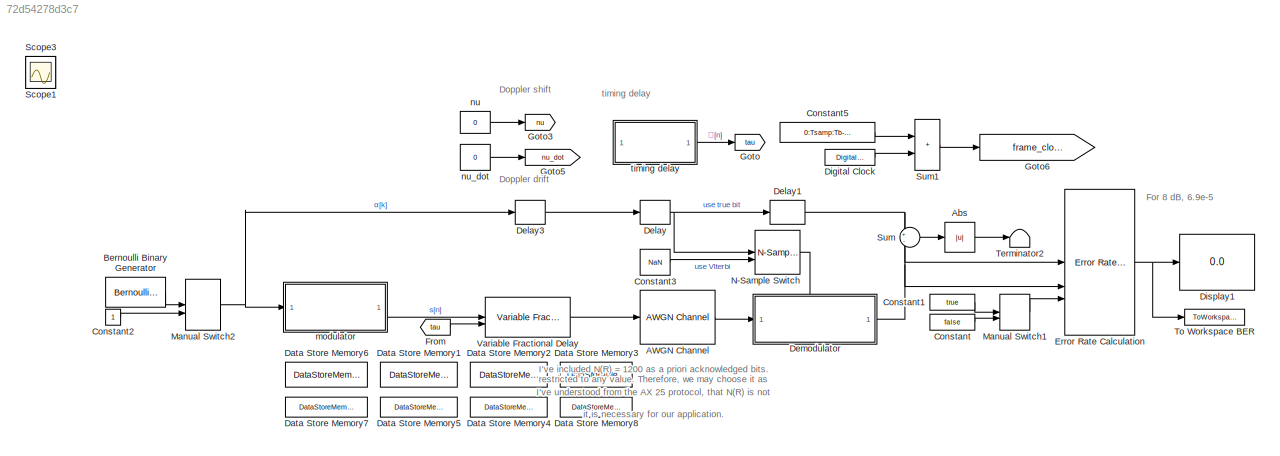
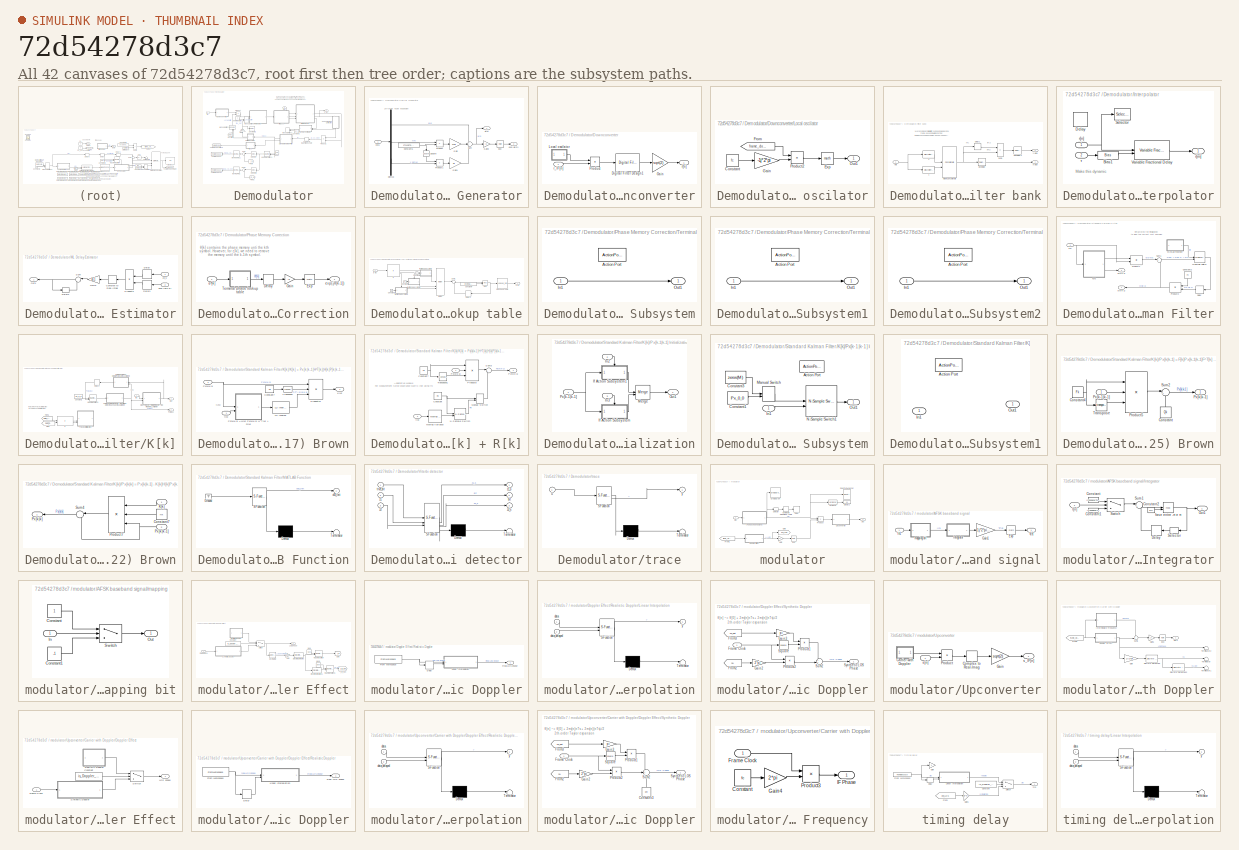
[diagram: thumbnail index - all 42 canvases of the model, root first then tree order]
MODEL slx_72d54278d3c7
KIND model
CONFIG AbsTol = auto
CONFIG EnableMultiTasking = off
CONFIG FixedStep = auto
CONFIG InitFcn = % get realistic ϕ_LOS (in rad) and tau_LOS (in sec) (both sampled in Tb)\n[phi_LOS, tau_LOS]= get_LOS_effects(f_uplink, scenario, Tb);\n% get initial estimates\ninitial_estimates = get_initial_estimates(phi_LOS.Data, Tb);\n% tau in number of symbols (unitless, sampled  in Tb)\ntau_LOS_symbols = tau_LOS/Tb;\n% 𝜏 LOS in in number of samples (unitless, sampled in Tb)\ntau_LOS_samples = tau_LOS_symbols*Ns;\n\n...<+1507ch>
CONFIG MaxStep = auto
CONFIG MinStep = auto
CONFIG PreLoadFcn = addpath('./inputs')\n\nfc = 120e3;\ndelta_f = 1000; % Hz\nf0 = fc-(delta_f/2);\nf1 = fc+(delta_f/2);\n\nRb = 1200; % bit rate = 1,2 kbps\nTb = 1/Rb; % Bit period = Frame period\nNc = 4; % the number of samples between 0 and 2π of the carrier. There are 100 periods in each Ns samples.\nNs = fc*Tb*Nc; % = 400 The number of samples per Tb.\nTsamp = Tb/Ns; % Sample period\nRsamp = 1/Tsamp; % sampling rate\n\nfd = d...<+843ch>
CONFIG RelTol = 1e-3
CONFIG SampleTimeConstraint = Unconstrained
CONFIG SolverName = VariableStepAuto
CONFIG StartTime = 0.0
CONFIG StopTime = inf
BLOCK [Reference] AWGN Channel  REF=commchan3/AWGN
Channel
  SourceBlock = commchan3/AWGN\nChannel
  SourceType = AWGN Channel
  UserDataPersistent = on
BLOCK [Abs] Abs
  SaturateOnIntegerOverflow = off
BLOCK [Reference] Bernoulli Binary Generator  REF=commrandsrc3/Bernoulli Binary
Generator
  SourceBlock = commrandsrc3/Bernoulli Binary\nGenerator
  SourceType = Bernoulli Binary Generator
BLOCK [Constant] Constant
  Value = false
BLOCK [Constant] Constant1
  Value = true
BLOCK [Constant] Constant2
  SampleTime = Tb
BLOCK [Constant] Constant3
  Value = NaN
BLOCK [Constant] Constant5
  Value = 0:Tsamp:Tb-Tsamp
BLOCK [DataStoreMemory] Data Store Memory1
  DataStoreName = z2_window
  Dimensions = [N_terminal_phases/2 K]
  InitialValue = NaN(N_terminal_phases/2, K)
  OutDataTypeStr = double
  ReadBeforeWriteMsg = warning
  ShowAdditionalParam = off
  SignalType = complex
  WriteAfterReadMsg = warning
  WriteAfterWriteMsg = warning
BLOCK [DataStoreMemory] Data Store Memory2
  DataStoreName = is_full_window
  Dimensions = 1
  InitialValue = logical(0)
  OutDataTypeStr = boolean
  ReadBeforeWriteMsg = warning
  ShowAdditionalParam = off
  SignalType = real
  WriteAfterReadMsg = warning
  WriteAfterWriteMsg = warning
BLOCK [DataStoreMemory] Data Store Memory3
  DataStoreName = z1_window
  Dimensions = [N_terminal_phases/2 K]
  InitialValue = NaN(N_terminal_phases/2, K)
  OutDataTypeStr = double
  ReadBeforeWriteMsg = warning
  ShowAdditionalParam = off
  SignalType = complex
  WriteAfterReadMsg = warning
  WriteAfterWriteMsg = warning
BLOCK [DataStoreMemory] Data Store Memory4
  DataStoreName = bits_window
  Dimensions = [N_terminal_phases/2 K]
  InitialValue = 5*ones(N_terminal_phases/2, K)
  OutDataTypeStr = double
  ReadBeforeWriteMsg = warning
  ShowAdditionalParam = off
  SignalType = real
  WriteAfterReadMsg = warning
  WriteAfterWriteMsg = warning
BLOCK [DataStoreMemory] Data Store Memory5
  DataStoreName = depth
  Dimensions = 1
  InitialValue = -init_LOS_delay
  OutDataTypeStr = double
  ReadBeforeWriteMsg = warning
  ShowAdditionalParam = off
  SignalType = real
  WriteAfterReadMsg = warning
  WriteAfterWriteMsg = warning
BLOCK [DataStoreMemory] Data Store Memory6
  DataStoreName = metric_survivors
  Dimensions = N_terminal_phases/2
  InitialValue = zeros(1,N_terminal_phases/2)
  OutDataTypeStr = double
  ReadBeforeWriteMsg = warning
  ShowAdditionalParam = off
  SignalType = real
  WriteAfterReadMsg = warning
  WriteAfterWriteMsg = warning
BLOCK [DataStoreMemory] Data Store Memory7
  DataStoreName = state
  Dimensions = 1
  InitialValue = false
  OutDataTypeStr = boolean
  ReadBeforeWriteMsg = warning
  ShowAdditionalParam = off
  SignalType = real
  WriteAfterReadMsg = warning
  WriteAfterWriteMsg = warning
BLOCK [DataStoreMemory] Data Store Memory8
  DataStoreName = count
  Dimensions = 1
  InitialValue = 1
  OutDataTypeStr = double
  ReadBeforeWriteMsg = warning
  ShowAdditionalParam = off
  SignalType = real
  WriteAfterReadMsg = warning
  WriteAfterWriteMsg = warning
BLOCK [Delay] Delay
  DelayLength = 1
  InitialCondition = NaN
  InputPortMap = u0
  NameLocation = top
BLOCK [Delay] Delay1
  DelayLength = K
  InitialCondition = NaN
  InputPortMap = u0
BLOCK [Delay] Delay3
  DelayLength = init_LOS_delay
  InitialCondition = NaN
  InputPortMap = u0
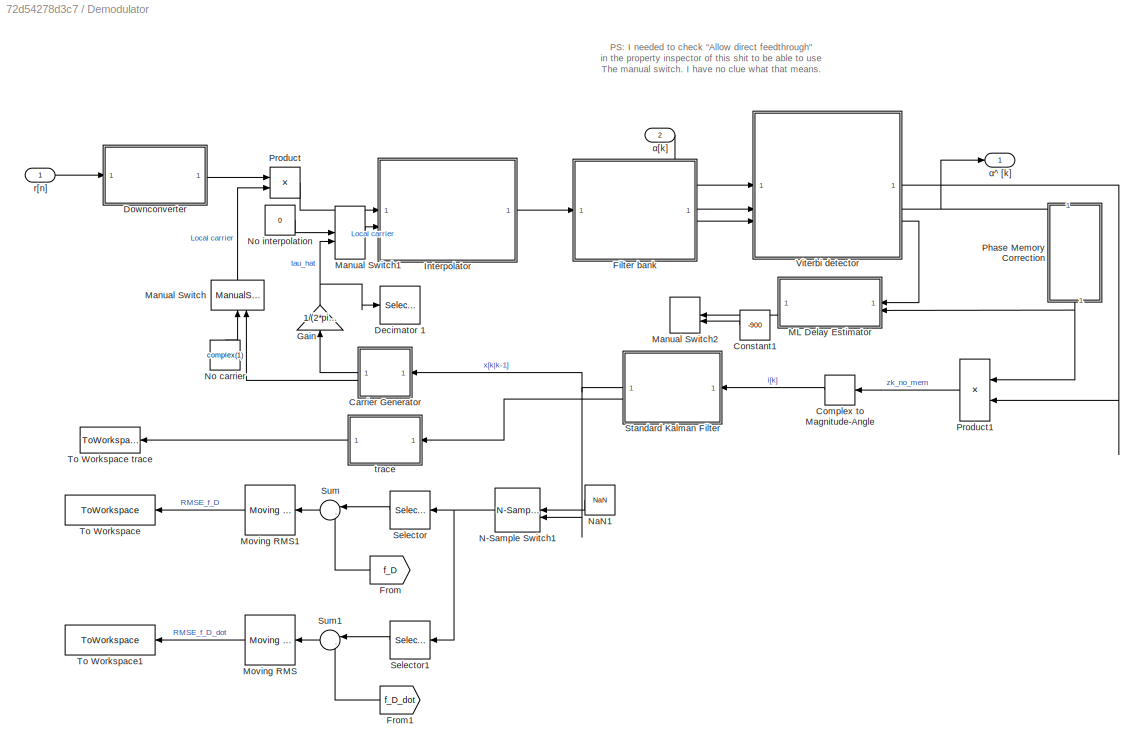
BLOCK [SubSystem] Demodulator
  PortSchema = {"entries":[{"content":{"sides":[{"content":{"connectorIds":["In1"]},"type":"ConnectorPlacement.EquallySpacedRectSide","uuid":"ecba8ed6-bc33-46f0-af25-b274c72623b2"},{"content":{"connectorIds":["Out1"],"side":"RIGHT"},"type":"ConnectorPlacement.EquallySpacedRectSide","uuid":"d7f95e6f-fba9-4d7d-8ac9-e609210cafa8"},{"content":{"connectorIds":["In2"],"side":"TOP"},"type":"ConnectorPlacement.EquallySp...<+245ch>
BLOCK [SubSystem] Demodulator/Carrier Generator
BLOCK [Constant] Demodulator/Carrier Generator/Constant5
  Value = 0:Tsamp:Tb-Tsamp
BLOCK [Demux] Demodulator/Carrier Generator/Demux
  Outputs = 3
BLOCK [Math] Demodulator/Carrier Generator/Exp
BLOCK [Gain] Demodulator/Carrier Generator/Gain
  Gain = 2*pi
BLOCK [Gain] Demodulator/Carrier Generator/Gain1
  Gain = pi
BLOCK [Gain] Demodulator/Carrier Generator/Gain2
  Gain = -1j
BLOCK [Product] Demodulator/Carrier Generator/Product
BLOCK [Product] Demodulator/Carrier Generator/Product1
BLOCK [Math] Demodulator/Carrier Generator/Square
  NameLocation = left
  Operator = square
BLOCK [Sum] Demodulator/Carrier Generator/Sum
  Inputs = +++
BLOCK [Outport] Demodulator/Carrier Generator/exp(-jθ[n])
  Port = 2
BLOCK [Inport] Demodulator/Carrier Generator/xkk1
BLOCK [Outport] Demodulator/Carrier Generator/θ[n]
BLOCK [ComplexToMagnitudeAngle] Demodulator/Complex to Magnitude-Angle
  NameLocation = top
  Output = Angle
BLOCK [Constant] Demodulator/Constant1
  Commented = on
  Value = -900
BLOCK [Selector] Demodulator/Decimator 1
  IndexOptions = Index vector (dialog),Select all
  Indices = Ns,1
  InputPortWidth = 3
  NumberOfDimensions = 2
  OutputSizes = 1,1
BLOCK [SubSystem] Demodulator/Downconverter
  Commented = through
  NameLocation = top
BLOCK [Reference] Demodulator/Downconverter/Digital Filter Design1  REF=dspfdesign/Digital
Filter Design
  SourceBlock = dspfdesign/Digital\nFilter Design
  SourceType = Digital Filter Design
  UserDataPersistent = on
BLOCK [Gain] Demodulator/Downconverter/Gain
  Gain = sqrt(2)
BLOCK [SubSystem] Demodulator/Downconverter/Local oscilator
  NameLocation = top
BLOCK [Constant] Demodulator/Downconverter/Local oscilator/Constant
  Value = fc
BLOCK [Math] Demodulator/Downconverter/Local oscilator/Exp
BLOCK [From] Demodulator/Downconverter/Local oscilator/From
  GotoTag = frame_clock
  TagVisibility = global
BLOCK [Gain] Demodulator/Downconverter/Local oscilator/Gain
  Gain = -1j*2*pi
BLOCK [Outport] Demodulator/Downconverter/Local oscilator/Out1
BLOCK [Product] Demodulator/Downconverter/Local oscilator/Product2
BLOCK [Product] Demodulator/Downconverter/Product
BLOCK [Inport] Demodulator/Downconverter/r_IF[n]
BLOCK [Outport] Demodulator/Downconverter/r̃[n]
  NameLocation = top
BLOCK [SubSystem] Demodulator/Filter bank
BLOCK [DiscreteFir] Demodulator/Filter bank/0
  CloseFcn = dspblkCoreblockFVToolHelper(gcbh,'close');
  Coefficients = flip(impulse_response(:,1)')
  CopyFcn = dspblkCoreblockFVToolHelper(gcbh,'copy');
  DeleteFcn = dspblkCoreblockFVToolHelper(gcbh,'close');
  InputPortMap = u0
  InputProcessing = Columns as channels (frame based)
  LoadFcn = dspblkCoreblockFVToolHelper(gcbh,'load');
  ModelCloseFcn = dspblkCoreblockFVToolHelper(gcbh,'close');
  OutputPortMap = o0
  PostSaveFcn = dspblkCoreblockFVToolHelper(gcbh,'postsave');
  PreSaveFcn = dspblkCoreblockFVToolHelper(gcbh,'presave');
BLOCK [DiscreteFir] Demodulator/Filter bank/1
  CloseFcn = dspblkCoreblockFVToolHelper(gcbh,'close');
  Coefficients = flip(impulse_response(:,2)')
  CopyFcn = dspblkCoreblockFVToolHelper(gcbh,'copy');
  DeleteFcn = dspblkCoreblockFVToolHelper(gcbh,'close');
  InputPortMap = u0
  InputProcessing = Columns as channels (frame based)
  LoadFcn = dspblkCoreblockFVToolHelper(gcbh,'load');
  ModelCloseFcn = dspblkCoreblockFVToolHelper(gcbh,'close');
  OutputPortMap = o0
  PostSaveFcn = dspblkCoreblockFVToolHelper(gcbh,'postsave');
  PreSaveFcn = dspblkCoreblockFVToolHelper(gcbh,'presave');
BLOCK [Selector] Demodulator/Filter bank/Decimator
  IndexOptions = Index vector (dialog),Select all
  Indices = Ns,Ns
  InputPortWidth = 3
  NumberOfDimensions = 2
  OutputSizes = 1,1
BLOCK [Selector] Demodulator/Filter bank/Decimator 2
  IndexOptions = Index vector (dialog),Select all
  Indices = Ns,1
  InputPortWidth = 3
  NumberOfDimensions = 2
  OutputSizes = 1,1
BLOCK [Delay] Demodulator/Filter bank/Delay1
  InputPortMap = u0
  InputProcessing = Columns as channels (frame based)
BLOCK [Concatenate] Demodulator/Filter bank/Matrix Concatenate
  ConcatenateDimension = 2
  Mode = Multidimensional array
BLOCK [Sum] Demodulator/Filter bank/Sum1
  IconShape = rectangular
  Inputs = -+
BLOCK [Inport] Demodulator/Filter bank/r[m]
BLOCK [Outport] Demodulator/Filter bank/x(α[k])
BLOCK [Outport] Demodulator/Filter bank/y(α[k])
  Port = 2
BLOCK [From] Demodulator/From
  GotoTag = f_D
  NameLocation = top
  TagVisibility = global
BLOCK [From] Demodulator/From1
  GotoTag = f_D_dot
  NameLocation = top
  TagVisibility = global
BLOCK [Gain] Demodulator/Gain
  Gain = 1/(2*pi*f_uplink*Tsamp)
  NameLocation = left
BLOCK [SubSystem] Demodulator/Interpolator
BLOCK [Bias] Demodulator/Interpolator/Bias1
  Bias = (init_LOS_delay+1)*Ns
  SaturateOnIntegerOverflow = off
BLOCK [Delay] Demodulator/Interpolator/Delay
  Commented = on
  DelayLength = Ns-9
  DelayLengthSource = Input port
  DelayLengthUpperLimit = Ns-9
  InputPortMap = u0,p1
  InputProcessing = Columns as channels (frame based)
BLOCK [Selector] Demodulator/Interpolator/Selector
  Commented = on
  IndexOptions = Select all,Index vector (dialog)
  Indices = [1 3],1
  InputPortWidth = 3
  NumberOfDimensions = 2
  OutputSizes = 1,1
BLOCK [Reference] Demodulator/Interpolator/Variable Fractional Delay  REF=dspsigops/Variable
Fractional Delay
  SourceBlock = dspsigops/Variable\nFractional Delay
  SourceType = Variable Fractional Delay
  UserDataPersistent = on
BLOCK [Outport] Demodulator/Interpolator/r[m]
BLOCK [Inport] Demodulator/Interpolator/r[n]
  NameLocation = top
BLOCK [Inport] Demodulator/Interpolator/τ
  Port = 2
BLOCK [SubSystem] Demodulator/ML Delay Estimator
  Commented = on
BLOCK [ComplexToRealImag] Demodulator/ML Delay Estimator/Complex to Real-Imag
  Output = Real
BLOCK [Delay] Demodulator/ML Delay Estimator/Delay
  DelayLength = 1
  InputPortMap = u0
  NameLocation = top
BLOCK [Delay] Demodulator/ML Delay Estimator/Delay1
  DelayLength = 1
  InputPortMap = u0
  NameLocation = top
BLOCK [Delay] Demodulator/ML Delay Estimator/Delay2
  DelayLength = 1
  InitialCondition = -real_tau_LOS.Data(1)
  InputPortMap = u0
BLOCK [Gain] Demodulator/ML Delay Estimator/Gain1
  Gain = 1e-1
BLOCK [Outport] Demodulator/ML Delay Estimator/Out1
BLOCK [Product] Demodulator/ML Delay Estimator/Product2
  NameLocation = top
BLOCK [Sum] Demodulator/ML Delay Estimator/Sum
  Inputs = |-+
BLOCK [Inport] Demodulator/ML Delay Estimator/exp(-jθ[k-1])
  NameLocation = top
  Port = 2
BLOCK [Inport] Demodulator/ML Delay Estimator/z2_s
  NameLocation = top
BLOCK [ManualSwitch] Demodulator/Manual Switch
  CurrentSetting = 0
  NameLocation = right
BLOCK [ManualSwitch] Demodulator/Manual Switch1
  CurrentSetting = 0
BLOCK [ManualSwitch] Demodulator/Manual Switch2
  Commented = on
BLOCK [Reference] Demodulator/Moving RMS  REF=dspstat3/Moving
RMS
  NameLocation = top
  SourceBlock = dspstat3/Moving\nRMS
  SourceType = dsp.simulink.MovingRMS
BLOCK [Reference] Demodulator/Moving RMS1  REF=dspstat3/Moving
RMS
  NameLocation = top
  SourceBlock = dspstat3/Moving\nRMS
  SourceType = dsp.simulink.MovingRMS
BLOCK [Reference] Demodulator/N-Sample Switch1  REF=dspswit3/N-Sample
Switch
  NameLocation = top
  SourceBlock = dspswit3/N-Sample\nSwitch
  SourceType = N-Sample Switch
BLOCK [Constant] Demodulator/NaN1
  NameLocation = top
  OutDataTypeStr = Inherit: Inherit via back propagation
  Value = NaN
BLOCK [Constant] Demodulator/No carrier
  Value = complex(1)
BLOCK [Constant] Demodulator/No interpolation
  Value = 0
BLOCK [SubSystem] Demodulator/Phase Memory Correction
  NameLocation = left
BLOCK [Delay] Demodulator/Phase Memory Correction/Delay
  DelayLength = 1
  InputPortMap = u0
BLOCK [Math] Demodulator/Phase Memory Correction/Exp
  NameLocation = top
BLOCK [Gain] Demodulator/Phase Memory Correction/Gain
  Gain = -1j
  NameLocation = top
BLOCK [SubSystem] Demodulator/Phase Memory Correction/Terminal phase lookup table
BLOCK [Constant] Demodulator/Phase Memory Correction/Terminal phase lookup table/Constant1
  Value = 0
BLOCK [Constant] Demodulator/Phase Memory Correction/Terminal phase lookup table/Constant7
  Value = length(all_phases)
BLOCK [Constant] Demodulator/Phase Memory Correction/Terminal phase lookup table/Constant8
BLOCK [Constant] Demodulator/Phase Memory Correction/Terminal phase lookup table/Constant9
  Value = -1
BLOCK [Delay] Demodulator/Phase Memory Correction/Terminal phase lookup table/Delay3
  DelayLength = 1
  InputPortMap = u0
BLOCK [If] Demodulator/Phase Memory Correction/Terminal phase lookup table/If
  ElseIfExpressions = u1 == 0
  IfExpression = u1 == 1
BLOCK [SubSystem] Demodulator/Phase Memory Correction/Terminal phase lookup table/If Action Subsystem
  TreatAsAtomicUnit = on
BLOCK [ActionPort] Demodulator/Phase Memory Correction/Terminal phase lookup table/If Action Subsystem/Action Port
  ActionPortLabel = if(u1 == 1)
BLOCK [Inport] Demodulator/Phase Memory Correction/Terminal phase lookup table/If Action Subsystem/In1
BLOCK [Outport] Demodulator/Phase Memory Correction/Terminal phase lookup table/If Action Subsystem/Out1
BLOCK [SubSystem] Demodulator/Phase Memory Correction/Terminal phase lookup table/If Action Subsystem1
  TreatAsAtomicUnit = on
BLOCK [ActionPort] Demodulator/Phase Memory Correction/Terminal phase lookup table/If Action Subsystem1/Action Port
  ActionPortLabel = elseif(u1 == 0)
BLOCK [Inport] Demodulator/Phase Memory Correction/Terminal phase lookup table/If Action Subsystem1/In1
BLOCK [Outport] Demodulator/Phase Memory Correction/Terminal phase lookup table/If Action Subsystem1/Out1
BLOCK [SubSystem] Demodulator/Phase Memory Correction/Terminal phase lookup table/If Action Subsystem2
  TreatAsAtomicUnit = on
BLOCK [ActionPort] Demodulator/Phase Memory Correction/Terminal phase lookup table/If Action Subsystem2/Action Port
  ActionPortLabel = else
BLOCK [Inport] Demodulator/Phase Memory Correction/Terminal phase lookup table/If Action Subsystem2/In1
BLOCK [Outport] Demodulator/Phase Memory Correction/Terminal phase lookup table/If Action Subsystem2/Out1
BLOCK [Merge] Demodulator/Phase Memory Correction/Terminal phase lookup table/Merge
  Inputs = 3
BLOCK [Math] Demodulator/Phase Memory Correction/Terminal phase lookup table/Mod
  Operator = mod
BLOCK [Sum] Demodulator/Phase Memory Correction/Terminal phase lookup table/Sum1
  Inputs = |++
BLOCK [Lookup_n-D] Demodulator/Phase Memory Correction/Terminal phase lookup table/n-D Lookup Table
  BreakpointsForDimension1 = 0:length(all_phases)-1
  BreakpointsForDimension1FirstPoint = 10
  BreakpointsForDimension1Spacing = 12
  BreakpointsForDimension2 = [1:2]
  BreakpointsForDimension2FirstPoint = 10
  BreakpointsForDimension2Spacing = 12
  BreakpointsForDimension3 = [5, 7]
  DiagnosticForOutOfRangeInput = Error
  IndexSearchMethod = Evenly spaced points
  InputPortMap = u0
  InternalRulePriority = Speed
  InterpMethod = Flat
  LookupTableObject = ''
  NumberOfTableDimensions = 1
  RndMeth = Simplest
  Table = all_phases
BLOCK [Inport] Demodulator/Phase Memory Correction/Terminal phase lookup table/α^ [k]
BLOCK [Outport] Demodulator/Phase Memory Correction/Terminal phase lookup table/θ^[k]
BLOCK [Outport] Demodulator/Phase Memory Correction/exp(-jθ[k-1])
  NameLocation = top
BLOCK [Inport] Demodulator/Phase Memory Correction/α^[k]
BLOCK [Product] Demodulator/Product
BLOCK [Product] Demodulator/Product1
  NameLocation = top
BLOCK [Selector] Demodulator/Selector
  IndexOptions = Index vector (dialog)
  Indices = 2
  InputPortWidth = 3
  NameLocation = top
  OutputSizes = 1
BLOCK [Selector] Demodulator/Selector1
  IndexOptions = Index vector (dialog)
  Indices = 3
  InputPortWidth = 3
  NameLocation = top
  OutputSizes = 1
BLOCK [SubSystem] Demodulator/Standard Kalman Filter
BLOCK [Constant] Demodulator/Standard Kalman Filter/Constant2
  NameLocation = left
  SampleTime = Tb
  Value = Fk
  VectorParams1D = off
BLOCK [Delay] Demodulator/Standard Kalman Filter/Delay
  DelayLength = 1
  InitialCondition = 0
  InputPortMap = u0
  NameLocation = top
BLOCK [SubSystem] Demodulator/Standard Kalman Filter/K[k]
BLOCK [Constant] Demodulator/Standard Kalman Filter/K[k]/Constant1
  SampleTime = Tb
  Value = Px_0_0
  VectorParams1D = off
BLOCK [Delay] Demodulator/Standard Kalman Filter/K[k]/Delay1
  DelayLength = 1
  InitialCondition = 0
  InputPortMap = u0
BLOCK [From] Demodulator/Standard Kalman Filter/K[k]/From
  Commented = on
  GotoTag = Reinit_time
  TagVisibility = global
BLOCK [From] Demodulator/Standard Kalman Filter/K[k]/From1
  Commented = on
  GotoTag = digital_clock
  TagVisibility = global
BLOCK [If] Demodulator/Standard Kalman Filter/K[k]/If
  Commented = on
  IfExpression = u1 > u2
  NumInputs = 2
BLOCK [Outport] Demodulator/Standard Kalman Filter/K[k]/K[k]
  VectorParamsAs1DForOutWhenUnconnected = off
BLOCK [SubSystem] Demodulator/Standard Kalman Filter/K[k]/K[k] = Px[k|k-1]H^T[k](H[k]P[k|k-1]H^T[k] + R[k])⁻¹ cf. (4.2.17) Brown
BLOCK [Reference] Demodulator/Standard Kalman Filter/K[k]/K[k] = Px[k|k-1]H^T[k](H[k]P[k|k-1]H^T[k] + R[k])⁻¹ cf. (4.2.17) Brown/ LU Inverse  REF=dspinverses/ LU Inverse
  SourceBlock = dspinverses/ LU Inverse
  SourceType = LU Inverse
BLOCK [SubSystem] Demodulator/Standard Kalman Filter/K[k]/K[k] = Px[k|k-1]H^T[k](H[k]P[k|k-1]H^T[k] + R[k])⁻¹ cf. (4.2.17) Brown/ Pz[k|k-1] = H[k] Px[k|k-1] H^T[k] + R[k]
BLOCK [Constant] Demodulator/Standard Kalman Filter/K[k]/K[k] = Px[k|k-1]H^T[k](H[k]P[k|k-1]H^T[k] + R[k])⁻¹ cf. (4.2.17) Brown/ Pz[k|k-1] = H[k] Px[k|k-1] H^T[k] + R[k]/Constant
  Value = Rk
BLOCK [Constant] Demodulator/Standard Kalman Filter/K[k]/K[k] = Px[k|k-1]H^T[k](H[k]P[k|k-1]H^T[k] + R[k])⁻¹ cf. (4.2.17) Brown/ Pz[k|k-1] = H[k] Px[k|k-1] H^T[k] + R[k]/Constant7
  SampleTime = Tb
  Value = Hk
  VectorParams1D = off
BLOCK [ManualSwitch] Demodulator/Standard Kalman Filter/K[k]/K[k] = Px[k|k-1]H^T[k](H[k]P[k|k-1]H^T[k] + R[k])⁻¹ cf. (4.2.17) Brown/ Pz[k|k-1] = H[k] Px[k|k-1] H^T[k] + R[k]/Manual Switch
BLOCK [Reference] Demodulator/Standard Kalman Filter/K[k]/K[k] = Px[k|k-1]H^T[k](H[k]P[k|k-1]H^T[k] + R[k])⁻¹ cf. (4.2.17) Brown/ Pz[k|k-1] = H[k] Px[k|k-1] H^T[k] + R[k]/Moving Variance  REF=dspstat3/Moving
Variance
  SourceBlock = dspstat3/Moving\nVariance
  SourceType = dsp.simulink.MovingVariance
BLOCK [Reference] Demodulator/Standard Kalman Filter/K[k]/K[k] = Px[k|k-1]H^T[k](H[k]P[k|k-1]H^T[k] + R[k])⁻¹ cf. (4.2.17) Brown/ Pz[k|k-1] = H[k] Px[k|k-1] H^T[k] + R[k]/N-Sample Switch  REF=dspswit3/N-Sample
Switch
  SourceBlock = dspswit3/N-Sample\nSwitch
  SourceType = N-Sample Switch
BLOCK [Product] Demodulator/Standard Kalman Filter/K[k]/K[k] = Px[k|k-1]H^T[k](H[k]P[k|k-1]H^T[k] + R[k])⁻¹ cf. (4.2.17) Brown/ Pz[k|k-1] = H[k] Px[k|k-1] H^T[k] + R[k]/Product8
  Inputs = 3
  Multiplication = Matrix(*)
BLOCK [Inport] Demodulator/Standard Kalman Filter/K[k]/K[k] = Px[k|k-1]H^T[k](H[k]P[k|k-1]H^T[k] + R[k])⁻¹ cf. (4.2.17) Brown/ Pz[k|k-1] = H[k] Px[k|k-1] H^T[k] + R[k]/Px[k|k-1]
BLOCK [Outport] Demodulator/Standard Kalman Filter/K[k]/K[k] = Px[k|k-1]H^T[k](H[k]P[k|k-1]H^T[k] + R[k])⁻¹ cf. (4.2.17) Brown/ Pz[k|k-1] = H[k] Px[k|k-1] H^T[k] + R[k]/Pz[k|k-1]
  VectorParamsAs1DForOutWhenUnconnected = off
BLOCK [Sum] Demodulator/Standard Kalman Filter/K[k]/K[k] = Px[k|k-1]H^T[k](H[k]P[k|k-1]H^T[k] + R[k])⁻¹ cf. (4.2.17) Brown/ Pz[k|k-1] = H[k] Px[k|k-1] H^T[k] + R[k]/Sum3
  Inputs = |++
BLOCK [Math] Demodulator/Standard Kalman Filter/K[k]/K[k] = Px[k|k-1]H^T[k](H[k]P[k|k-1]H^T[k] + R[k])⁻¹ cf. (4.2.17) Brown/ Pz[k|k-1] = H[k] Px[k|k-1] H^T[k] + R[k]/Transpose1
  Operator = transpose
  SignedPower = on
BLOCK [Inport] Demodulator/Standard Kalman Filter/K[k]/K[k] = Px[k|k-1]H^T[k](H[k]P[k|k-1]H^T[k] + R[k])⁻¹ cf. (4.2.17) Brown/ Pz[k|k-1] = H[k] Px[k|k-1] H^T[k] + R[k]/i[k]
  Port = 2
BLOCK [Constant] Demodulator/Standard Kalman Filter/K[k]/K[k] = Px[k|k-1]H^T[k](H[k]P[k|k-1]H^T[k] + R[k])⁻¹ cf. (4.2.17) Brown/Constant7
  NameLocation = top
  SampleTime = Tb
  Value = Hk
  VectorParams1D = off
BLOCK [Outport] Demodulator/Standard Kalman Filter/K[k]/K[k] = Px[k|k-1]H^T[k](H[k]P[k|k-1]H^T[k] + R[k])⁻¹ cf. (4.2.17) Brown/K[k]
  VectorParamsAs1DForOutWhenUnconnected = off
BLOCK [Product] Demodulator/Standard Kalman Filter/K[k]/K[k] = Px[k|k-1]H^T[k](H[k]P[k|k-1]H^T[k] + R[k])⁻¹ cf. (4.2.17) Brown/Product11
  Inputs = 3
  Multiplication = Matrix(*)
BLOCK [Inport] Demodulator/Standard Kalman Filter/K[k]/K[k] = Px[k|k-1]H^T[k](H[k]P[k|k-1]H^T[k] + R[k])⁻¹ cf. (4.2.17) Brown/Px[k|k-1]
  Port = 2
BLOCK [Math] Demodulator/Standard Kalman Filter/K[k]/K[k] = Px[k|k-1]H^T[k](H[k]P[k|k-1]H^T[k] + R[k])⁻¹ cf. (4.2.17) Brown/Transpose
  Operator = transpose
BLOCK [Inport] Demodulator/Standard Kalman Filter/K[k]/K[k] = Px[k|k-1]H^T[k](H[k]P[k|k-1]H^T[k] + R[k])⁻¹ cf. (4.2.17) Brown/i[k]
BLOCK [Reference] Demodulator/Standard Kalman Filter/K[k]/N-Sample Switch1  REF=dspswit3/N-Sample
Switch
  SourceBlock = dspswit3/N-Sample\nSwitch
  SourceType = N-Sample Switch
BLOCK [SubSystem] Demodulator/Standard Kalman Filter/K[k]/Px[k-1|k-1] Initialization
  Commented = on
BLOCK [SubSystem] Demodulator/Standard Kalman Filter/K[k]/Px[k-1|k-1] Initialization/If Action Subsystem
  TreatAsAtomicUnit = on
BLOCK [ActionPort] Demodulator/Standard Kalman Filter/K[k]/Px[k-1|k-1] Initialization/If Action Subsystem/Action Port
BLOCK [Constant] Demodulator/Standard Kalman Filter/K[k]/Px[k-1|k-1] Initialization/If Action Subsystem/Constant1
  SampleTime = Tb
  Value = Px_0_0
  VectorParams1D = off
BLOCK [Constant] Demodulator/Standard Kalman Filter/K[k]/Px[k-1|k-1] Initialization/If Action Subsystem/Constant3
  SampleTime = Tb
  Value = zeros(M)
  VectorParams1D = off
BLOCK [Inport] Demodulator/Standard Kalman Filter/K[k]/Px[k-1|k-1] Initialization/If Action Subsystem/In1
BLOCK [ManualSwitch] Demodulator/Standard Kalman Filter/K[k]/Px[k-1|k-1] Initialization/If Action Subsystem/Manual Switch
  CurrentSetting = 0
BLOCK [Reference] Demodulator/Standard Kalman Filter/K[k]/Px[k-1|k-1] Initialization/If Action Subsystem/N-Sample Switch1  REF=dspswit3/N-Sample
Switch
  SourceBlock = dspswit3/N-Sample\nSwitch
  SourceType = N-Sample Switch
BLOCK [Outport] Demodulator/Standard Kalman Filter/K[k]/Px[k-1|k-1] Initialization/If Action Subsystem/Out1
BLOCK [SubSystem] Demodulator/Standard Kalman Filter/K[k]/Px[k-1|k-1] Initialization/If Action Subsystem1
  TreatAsAtomicUnit = on
BLOCK [ActionPort] Demodulator/Standard Kalman Filter/K[k]/Px[k-1|k-1] Initialization/If Action Subsystem1/Action Port
BLOCK [Inport] Demodulator/Standard Kalman Filter/K[k]/Px[k-1|k-1] Initialization/If Action Subsystem1/In1
BLOCK [Outport] Demodulator/Standard Kalman Filter/K[k]/Px[k-1|k-1] Initialization/If Action Subsystem1/Out1
BLOCK [Inport] Demodulator/Standard Kalman Filter/K[k]/Px[k-1|k-1] Initialization/In2
  Port = 2
BLOCK [Inport] Demodulator/Standard Kalman Filter/K[k]/Px[k-1|k-1] Initialization/In3
  Port = 3
BLOCK [Merge] Demodulator/Standard Kalman Filter/K[k]/Px[k-1|k-1] Initialization/Merge
BLOCK [Outport] Demodulator/Standard Kalman Filter/K[k]/Px[k-1|k-1] Initialization/Out1
BLOCK [Inport] Demodulator/Standard Kalman Filter/K[k]/Px[k-1|k-1] Initialization/Px[k-1|k-1]
  NameLocation = top
BLOCK [Outport] Demodulator/Standard Kalman Filter/K[k]/Px[k|k-1]
  Port = 2
BLOCK [SubSystem] Demodulator/Standard Kalman Filter/K[k]/Px[k|k-1] = F[k]Px[k-1|k-1]F^T[k] + Q[k] Px projected ahead cf. (4.2.25) Brown
BLOCK [Constant] Demodulator/Standard Kalman Filter/K[k]/Px[k|k-1] = F[k]Px[k-1|k-1]F^T[k] + Q[k] Px projected ahead cf. (4.2.25) Brown/Constant
  NameLocation = right
  Value = Qk
BLOCK [Constant] Demodulator/Standard Kalman Filter/K[k]/Px[k|k-1] = F[k]Px[k-1|k-1]F^T[k] + Q[k] Px projected ahead cf. (4.2.25) Brown/Constant4
  SampleTime = Tb
  Value = Fk
  VectorParams1D = off
BLOCK [Product] Demodulator/Standard Kalman Filter/K[k]/Px[k|k-1] = F[k]Px[k-1|k-1]F^T[k] + Q[k] Px projected ahead cf. (4.2.25) Brown/Product5
  Inputs = 3
  Multiplication = Matrix(*)
BLOCK [Inport] Demodulator/Standard Kalman Filter/K[k]/Px[k|k-1] = F[k]Px[k-1|k-1]F^T[k] + Q[k] Px projected ahead cf. (4.2.25) Brown/Px[k-1|k-1]
  NameLocation = top
BLOCK [Outport] Demodulator/Standard Kalman Filter/K[k]/Px[k|k-1] = F[k]Px[k-1|k-1]F^T[k] + Q[k] Px projected ahead cf. (4.2.25) Brown/Px[k|k-1]
  NameLocation = top
  VectorParamsAs1DForOutWhenUnconnected = off
BLOCK [Sum] Demodulator/Standard Kalman Filter/K[k]/Px[k|k-1] = F[k]Px[k-1|k-1]F^T[k] + Q[k] Px projected ahead cf. (4.2.25) Brown/Sum2
  Inputs = |++
BLOCK [Math] Demodulator/Standard Kalman Filter/K[k]/Px[k|k-1] = F[k]Px[k-1|k-1]F^T[k] + Q[k] Px projected ahead cf. (4.2.25) Brown/Transpose
  Operator = transpose
  SignedPower = on
BLOCK [SubSystem] Demodulator/Standard Kalman Filter/K[k]/Px[k|k] = Px[k|k-1] - K[k]H[k]Px[k|k-1] cf. (4.2.22) Brown
  NameLocation = top
BLOCK [Constant] Demodulator/Standard Kalman Filter/K[k]/Px[k|k] = Px[k|k-1] - K[k]H[k]Px[k|k-1] cf. (4.2.22) Brown/Constant7
  NameLocation = top
  SampleTime = Tb
  Value = Hk
  VectorParams1D = off
BLOCK [Inport] Demodulator/Standard Kalman Filter/K[k]/Px[k|k] = Px[k|k-1] - K[k]H[k]Px[k|k-1] cf. (4.2.22) Brown/K[k]
  NameLocation = top
BLOCK [Product] Demodulator/Standard Kalman Filter/K[k]/Px[k|k] = Px[k|k-1] - K[k]H[k]Px[k|k-1] cf. (4.2.22) Brown/Product7
  Inputs = 3
  Multiplication = Matrix(*)
  NameLocation = top
BLOCK [Inport] Demodulator/Standard Kalman Filter/K[k]/Px[k|k] = Px[k|k-1] - K[k]H[k]Px[k|k-1] cf. (4.2.22) Brown/Px[k|k-1]
  Port = 2
BLOCK [Outport] Demodulator/Standard Kalman Filter/K[k]/Px[k|k] = Px[k|k-1] - K[k]H[k]Px[k|k-1] cf. (4.2.22) Brown/Px[k|k]
  VectorParamsAs1DForOutWhenUnconnected = off
BLOCK [Sum] Demodulator/Standard Kalman Filter/K[k]/Px[k|k] = Px[k|k-1] - K[k]H[k]Px[k|k-1] cf. (4.2.22) Brown/Sum4
  Inputs = |-+
  NameLocation = top
BLOCK [Inport] Demodulator/Standard Kalman Filter/K[k]/i[k]
BLOCK [SubSystem] Demodulator/Standard Kalman Filter/MATLAB Function
  ErrorFcn = Stateflow.Translate.translate
  PermitHierarchicalResolution = ExplicitOnly
  SFBlockType = MATLAB Function
  TreatAsAtomicUnit = on
BLOCK [Demux] Demodulator/Standard Kalman Filter/MATLAB Function/ Demux 
  Outputs = 1
BLOCK [Ground] Demodulator/Standard Kalman Filter/MATLAB Function/ Ground 
BLOCK [S-Function] Demodulator/Standard Kalman Filter/MATLAB Function/ SFunction 
  EnableBusSupport = on
  FunctionName = sf_sfun
  Parameters = M,init_LOS_delay,x00_matrix
  PortCounts = [1 2]
  SFcnIsStateOwnerBlock = off
  SFunctionDeploymentMode = off
  Tag = Stateflow S-Function 5
BLOCK [Terminator] Demodulator/Standard Kalman Filter/MATLAB Function/ Terminator 
BLOCK [Outport] Demodulator/Standard Kalman Filter/MATLAB Function/x00_init
BLOCK [Reference] Demodulator/Standard Kalman Filter/N-Sample Switch  REF=dspswit3/N-Sample
Switch
  SourceBlock = dspswit3/N-Sample\nSwitch
  SourceType = N-Sample Switch
BLOCK [Outport] Demodulator/Standard Kalman Filter/P[k|k-1]
  Port = 2
BLOCK [Product] Demodulator/Standard Kalman Filter/Product1
  Multiplication = Matrix(*)
BLOCK [Product] Demodulator/Standard Kalman Filter/Product2
  Multiplication = Matrix(*)
  NameLocation = top
BLOCK [Sum] Demodulator/Standard Kalman Filter/Sum1
  Inputs = |++
BLOCK [Inport] Demodulator/Standard Kalman Filter/i[k]
BLOCK [Outport] Demodulator/Standard Kalman Filter/x[k|k-1]
  VectorParamsAs1DForOutWhenUnconnected = off
BLOCK [Sum] Demodulator/Sum
  Inputs = |-+
  NameLocation = top
BLOCK [Sum] Demodulator/Sum1
  Inputs = |-+
  NameLocation = top
BLOCK [ToWorkspace] Demodulator/To Workspace
  FixptAsFi = on
  MaxDataPoints = inf
  NameLocation = top
  SampleTime = -1
  SaveFormat = Timeseries
  VariableName = RMSE_f_D
BLOCK [ToWorkspace] Demodulator/To Workspace trace
  FixptAsFi = on
  MaxDataPoints = inf
  NameLocation = top
  SampleTime = -1
  SaveFormat = Timeseries
  VariableName = tr
BLOCK [ToWorkspace] Demodulator/To Workspace1
  FixptAsFi = on
  MaxDataPoints = inf
  NameLocation = top
  SampleTime = -1
  SaveFormat = Timeseries
  VariableName = RMSE_f_D_dot
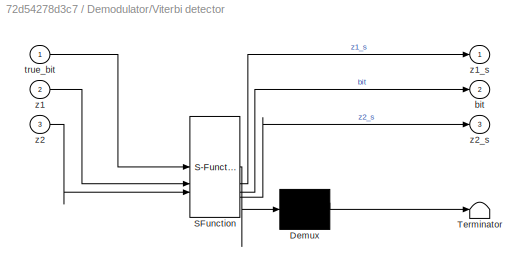
BLOCK [SubSystem] Demodulator/Viterbi detector
  ErrorFcn = Stateflow.Translate.translate
  PermitHierarchicalResolution = ExplicitOnly
  SFBlockType = MATLAB Function
  TreatAsAtomicUnit = on
BLOCK [Demux] Demodulator/Viterbi detector/ Demux 
  Outputs = 1
BLOCK [S-Function] Demodulator/Viterbi detector/ SFunction 
  EnableBusSupport = on
  FunctionName = sf_sfun
  Parameters = K,terminal_phases
  PortCounts = [3 4]
  SFcnIsStateOwnerBlock = off
  SFunctionDeploymentMode = off
  Tag = Stateflow S-Function 1
BLOCK [Terminator] Demodulator/Viterbi detector/ Terminator 
BLOCK [Outport] Demodulator/Viterbi detector/bit
  Port = 2
  VectorParamsAs1DForOutWhenUnconnected = off
BLOCK [Inport] Demodulator/Viterbi detector/true_bit
BLOCK [Inport] Demodulator/Viterbi detector/z1
  Port = 2
BLOCK [Outport] Demodulator/Viterbi detector/z1_s
BLOCK [Inport] Demodulator/Viterbi detector/z2
  Port = 3
BLOCK [Outport] Demodulator/Viterbi detector/z2_s
  Port = 3
BLOCK [Inport] Demodulator/r[n]
BLOCK [SubSystem] Demodulator/trace
  ErrorFcn = Stateflow.Translate.translate
  PermitHierarchicalResolution = ExplicitOnly
  SFBlockType = MATLAB Function
  TreatAsAtomicUnit = on
BLOCK [Demux] Demodulator/trace/ Demux 
  Outputs = 1
BLOCK [S-Function] Demodulator/trace/ SFunction 
  EnableBusSupport = on
  FunctionName = sf_sfun
  PortCounts = [1 2]
  SFcnIsStateOwnerBlock = off
  SFunctionDeploymentMode = off
  Tag = Stateflow S-Function 4
BLOCK [Terminator] Demodulator/trace/ Terminator 
BLOCK [Inport] Demodulator/trace/u
BLOCK [Outport] Demodulator/trace/y
BLOCK [Inport] Demodulator/α[k]
  Port = 2
BLOCK [Outport] Demodulator/α^ [k]
  NameLocation = top
  VectorParamsAs1DForOutWhenUnconnected = off
BLOCK [DigitalClock] Digital Clock
  SampleTime = Tb
BLOCK [Display] Display1
  Decimation = 1
  Format = short_e
BLOCK [Reference] Error Rate Calculation  REF=commsink2/Error Rate
Calculation
  SourceBlock = commsink2/Error Rate\nCalculation
  SourceType = Error Rate Calculation
BLOCK [From] From
  GotoTag = tau
  TagVisibility = global
BLOCK [Goto] Goto
  GotoTag = tau
  TagVisibility = global
BLOCK [Goto] Goto3
  GotoTag = nu
  TagVisibility = global
BLOCK [Goto] Goto5
  GotoTag = nu_dot
  TagVisibility = global
BLOCK [Goto] Goto6
  GotoTag = frame_clock
  TagVisibility = global
BLOCK [ManualSwitch] Manual Switch1
  CurrentSetting = 0
BLOCK [ManualSwitch] Manual Switch2
BLOCK [Reference] N-Sample Switch  REF=dspswit3/N-Sample
Switch
  SourceBlock = dspswit3/N-Sample\nSwitch
  SourceType = N-Sample Switch
BLOCK [Scope] Scope1
  Floating = off
  IOType = viewer
  NumInputPorts = 1
  ScopeSpecificationString = Simulink.scopes.TimeScopeBlockCfg('CurrentConfiguration', extmgr.ConfigurationSet(extmgr.Configuration('Core','General UI',true),extmgr.Configuration('Core','Source UI',true),extmgr.Configuration('Sources','WiredSimulink',true,'DataLoggingVariableName','ScopeData1'),extmgr.Configuration('Visuals','Time Domain',true,'SerializedDisplays',{struct('MinYLimReal','1.56696','MaxYLimReal','1.58221','YLabe...<+1446ch>
BLOCK [Scope] Scope3
  Floating = off
  IOType = viewer
  NumInputPorts = 1
  ScopeSpecificationString = Simulink.scopes.TimeScopeBlockCfg('CurrentConfiguration', extmgr.ConfigurationSet(extmgr.Configuration('Core','General UI',true),extmgr.Configuration('Core','Source UI',true),extmgr.Configuration('Sources','WiredSimulink',true,'DataLoggingVariableName','ScopeData2'),extmgr.Configuration('Visuals','Time Domain',true,'SerializedDisplays',{struct('MinYLimReal','-10.00000','MaxYLimReal','10.00000','YL...<+1454ch>
BLOCK [Sum] Sum
  Inputs = +-
BLOCK [Sum] Sum1
  IconShape = rectangular
BLOCK [Terminator] Terminator2
BLOCK [ToWorkspace] To Workspace BER
  FixptAsFi = on
  MaxDataPoints = 1
  SampleTime = -1
  VariableName = BER
BLOCK [Reference] Variable Fractional Delay  REF=dspsigops/Variable
Fractional Delay
  SourceBlock = dspsigops/Variable\nFractional Delay
  SourceType = Variable Fractional Delay
  UserDataPersistent = on
BLOCK [SubSystem] modulator
BLOCK [SubSystem] modulator/AFSK baseband signal
BLOCK [Math] modulator/AFSK baseband signal/Exp
BLOCK [Gain] modulator/AFSK baseband signal/Gain1
  Gain = 1j*2*pi*h
BLOCK [Inport] modulator/AFSK baseband signal/In1
BLOCK [SubSystem] modulator/AFSK baseband signal/Integrator
BLOCK [Constant] modulator/AFSK baseband signal/Integrator/Constant
  SampleTime = Tb
  Value = linspace(Tsamp / (2*Tb),0.5,Ns)
BLOCK [Constant] modulator/AFSK baseband signal/Integrator/Constant1
  SampleTime = Tb
  Value = -linspace(Tsamp / (2*Tb),0.5,Ns)
BLOCK [Constant] modulator/AFSK baseband signal/Integrator/Constant2
  SampleTime = Tb
  Value = 5/h
BLOCK [Delay] modulator/AFSK baseband signal/Integrator/Delay
  DelayLength = 1
  InputPortMap = u0
BLOCK [Inport] modulator/AFSK baseband signal/Integrator/I[n]
BLOCK [Outport] modulator/AFSK baseband signal/Integrator/Out1
  VectorParamsAs1DForOutWhenUnconnected = off
BLOCK [Selector] modulator/AFSK baseband signal/Integrator/Selector
  IndexOptions = Index vector (dialog)
  Indices = [Ns]
  InputPortWidth = Ns
  OutputSizes = 1
BLOCK [Sum] modulator/AFSK baseband signal/Integrator/Sum1
  Inputs = |++
BLOCK [Switch] modulator/AFSK baseband signal/Integrator/Switch
  Criteria = u2 > Threshold
  InputSameDT = off
  SaturateOnIntegerOverflow = off
BLOCK [Math] modulator/AFSK baseband signal/Integrator/fase entre -π e π
  Operator = mod
  SignedPower = on
BLOCK [SubSystem] modulator/AFSK baseband signal/mapping bit
BLOCK [Constant] modulator/AFSK baseband signal/mapping bit/Constant
  SampleTime = Tb
BLOCK [Constant] modulator/AFSK baseband signal/mapping bit/Constant1
  SampleTime = Tb
  Value = -1
BLOCK [Inport] modulator/AFSK baseband signal/mapping bit/In
BLOCK [Outport] modulator/AFSK baseband signal/mapping bit/Out
  VectorParamsAs1DForOutWhenUnconnected = off
BLOCK [Switch] modulator/AFSK baseband signal/mapping bit/Switch
  Criteria = u2 > Threshold
  InputSameDT = off
  SaturateOnIntegerOverflow = off
BLOCK [Outport] modulator/AFSK baseband signal/s[n]
BLOCK [ComplexToMagnitudeAngle] modulator/Complex to Magnitude-Angle
  Output = Angle
BLOCK [Delay] modulator/Delay
  DelayLength = K+1
  InitialCondition = NaN
  InputPortMap = u0
BLOCK [Display] modulator/Display2
  Commented = on
  Decimation = 1
BLOCK [SubSystem] modulator/Doppler Effect
BLOCK [Constant] modulator/Doppler Effect/Constant
  Value = is_Doppler_realistic
BLOCK [Selector] modulator/Doppler Effect/Decimator 2
  IndexOptions = Index vector (dialog),Select all
  Indices = Ns,1
  InputPortWidth = 3
  NumberOfDimensions = 2
  OutputSizes = 1,1
BLOCK [Reference] modulator/Doppler Effect/Discrete Derivative  REF=simulink/Discrete/Discrete Derivative
  SourceBlock = simulink/Discrete/Discrete Derivative
  SourceType = Discrete Derivative
BLOCK [Reference] modulator/Doppler Effect/Discrete Derivative1  REF=simulink/Discrete/Discrete Derivative
  SourceBlock = simulink/Discrete/Discrete Derivative
  SourceType = Discrete Derivative
BLOCK [Inport] modulator/Doppler Effect/Frame Clock
BLOCK [Gain] modulator/Doppler Effect/Gain
  Gain = 1/(2*pi)
BLOCK [Goto] modulator/Doppler Effect/Goto
  GotoTag = f_D
  TagVisibility = global
BLOCK [Outport] modulator/Doppler Effect/LOS phase
BLOCK [Reference] modulator/Doppler Effect/N-Sample Switch  REF=dspswit3/N-Sample
Switch
  SourceBlock = dspswit3/N-Sample\nSwitch
  SourceType = N-Sample Switch
BLOCK [Reference] modulator/Doppler Effect/N-Sample Switch1  REF=dspswit3/N-Sample
Switch
  SourceBlock = dspswit3/N-Sample\nSwitch
  SourceType = N-Sample Switch
BLOCK [Constant] modulator/Doppler Effect/NaN
  OutDataTypeStr = Inherit: Inherit via back propagation
  Value = NaN
BLOCK [Constant] modulator/Doppler Effect/NaN1
  OutDataTypeStr = Inherit: Inherit via back propagation
  Value = NaN
BLOCK [SubSystem] modulator/Doppler Effect/Realistic Doppler
BLOCK [Delay] modulator/Doppler Effect/Realistic Doppler/Delay
  DelayLength = 1
  InitialCondition = initial_estimates(1)
  InputPortMap = u0
BLOCK [FromWorkspace] modulator/Doppler Effect/Realistic Doppler/From Workspace
  SampleTime = Tb
  VariableName = phi_LOS
BLOCK [SubSystem] modulator/Doppler Effect/Realistic Doppler/Linear Interpolation
  ErrorFcn = Stateflow.Translate.translate
  NameLocation = top
  PermitHierarchicalResolution = ExplicitOnly
  SFBlockType = MATLAB Function
  TreatAsAtomicUnit = on
BLOCK [Demux] modulator/Doppler Effect/Realistic Doppler/Linear Interpolation/ Demux 
  Outputs = 1
BLOCK [S-Function] modulator/Doppler Effect/Realistic Doppler/Linear Interpolation/ SFunction 
  EnableBusSupport = on
  FunctionName = sf_sfun
  PortCounts = [2 2]
  SFcnIsStateOwnerBlock = off
  SFunctionDeploymentMode = off
  Tag = Stateflow S-Function 6
BLOCK [Terminator] modulator/Doppler Effect/Realistic Doppler/Linear Interpolation/ Terminator 
BLOCK [Inport] modulator/Doppler Effect/Realistic Doppler/Linear Interpolation/data
BLOCK [Inport] modulator/Doppler Effect/Realistic Doppler/Linear Interpolation/data_delayed
  Port = 2
BLOCK [Outport] modulator/Doppler Effect/Realistic Doppler/Linear Interpolation/y
BLOCK [Outport] modulator/Doppler Effect/Realistic Doppler/Real LOS phase
BLOCK [Switch] modulator/Doppler Effect/Switch
  Criteria = u2 ~= 0
  InputSameDT = off
  SaturateOnIntegerOverflow = off
BLOCK [SubSystem] modulator/Doppler Effect/Synthetic Doppler
BLOCK [Inport] modulator/Doppler Effect/Synthetic Doppler/Frame Clock
BLOCK [From] modulator/Doppler Effect/Synthetic Doppler/From2
  GotoTag = nu
  TagVisibility = global
BLOCK [From] modulator/Doppler Effect/Synthetic Doppler/From3
  GotoTag = nu_dot
  TagVisibility = global
BLOCK [Gain] modulator/Doppler Effect/Synthetic Doppler/Gain2
  Gain = 2*pi
BLOCK [Gain] modulator/Doppler Effect/Synthetic Doppler/Gain3
  Gain = pi
BLOCK [Product] modulator/Doppler Effect/Synthetic Doppler/Product1
BLOCK [Product] modulator/Doppler Effect/Synthetic Doppler/Product2
BLOCK [Math] modulator/Doppler Effect/Synthetic Doppler/Square
  Operator = square
BLOCK [Sum] modulator/Doppler Effect/Synthetic Doppler/Sum2
  Inputs = ++|
BLOCK [Outport] modulator/Doppler Effect/Synthetic Doppler/Synthetic LOS Phase
BLOCK [Goto] modulator/Doppler Effect/f_d_dot
  GotoTag = f_D_dot
  TagVisibility = global
BLOCK [Math] modulator/Exp
BLOCK [EyeDiagramBlock] modulator/Eye Diagram
  Commented = on
  GraphicalSettings = {"GraphicalSettings":{"Style":{"BackgroundColor":[1,1,1],"AxesColor":[1,1,1],"LabelsColor":[0.14901960784313725,0.14901960784313725,0.14901960784313725],"PreserveColors":false,"Visible":[],"LineStyle":["-"],"LineColor":[[0,0.4470588235294118,0.7411764705882353]],"LineWidth":[1.5,true],"Marker":["none"],"FontSize":"small"}}}
  OpenAtSimulationStart = off
  PlotImaginaryAxes = off
  SamplesPerSymbol = Ns
  ScopeFrameLocation = window
  SymbolsPerTrace = 5
  Title = Phase trellis
  TracesToDisplay = 100
  WasSavedAsWebScope = on
  WindowPosition = [1.000000,1.000000,1920.000000,1080.000000,]
  YLimits = [-3.93,35.34]
BLOCK [From] modulator/From1
  GotoTag = frame_clock
  TagVisibility = global
BLOCK [Gain] modulator/Gain
  Gain = 1j
BLOCK [Goto] modulator/Goto
  GotoTag = phi_LOS
  TagVisibility = global
BLOCK [Product] modulator/Product
BLOCK [Selector] modulator/Selector
  IndexOptions = Index vector (dialog)
  Indices = [Ns]
  InputPortWidth = Ns
  OutputSizes = 1
BLOCK [SpectrumAnalyzer] modulator/Spectrum Analyzer
  AllowFFTLengthLessThanSamplesPerUpdate = on
  AveragingMethod = Running
  AxesScaling = Manual
  Commented = on
  ExpandToolstrip = on
  FrequencySpan = Start and stop frequencies
  GraphicalSettings = {"GraphicalSettings":{"Style":{"BackgroundColor":[1,1,1],"AxesColor":[1,1,1],"LabelsColor":[0.14901960784313725,0.14901960784313725,0.14901960784313725],"PreserveColors":false,"Visible":[true],"LineStyle":["-"],"LineColor":[[0,0.4470588235294118,0.7411764705882353]],"LineWidth":[4],"Marker":["none"],"FontSize":"extra-large"},"Cursors":{"Enabled":false,"XLocation":[112.46826503807,3556.55882007785]...<+872ch>
  Method = Welch
  OpenAtSimulationStart = off
  PlotAsTwoSidedSpectrum = off
  SampleRate = 480000
  ScopeFrameLocation = window
  ScopeSpecificationString = spbscopes.SpectrumAnalyzerBlockCfg('CurrentConfiguration', extmgr.ConfigurationSet(extmgr.Configuration('Core','General UI',true,'FigureColor',[1 1 1]),extmgr.Configuration('Core','Source UI',true),extmgr.Configuration('Sources','WiredSimulink',true),extmgr.Configuration('Sources','SimulinkEvent',false),extmgr.Configuration('Sources','Simulink',false),extmgr.Configuration('Sources','SPTool',false)...<+4212ch>
  SpectralAverages = 100
  SpectrumType = Power density
  SpectrumUnits = dBm/Hz
  StartFrequency = 117e3
  StopFrequency = 123e3
  Title = Spectrum of digital AFSK modulator
  WasSavedAsWebScope = on
  WindowPosition = [1.000000,1.000000,1920.000000,1080.000000,]
  YLimits = [-70,22.62963183]
BLOCK [SubSystem] modulator/Upconverter
  Commented = through
BLOCK [SubSystem] modulator/Upconverter/Carrier with Doppler
BLOCK [Reference] modulator/Upconverter/Carrier with Doppler/Discrete Derivative  REF=simulink/Discrete/Discrete Derivative
  SourceBlock = simulink/Discrete/Discrete Derivative
  SourceType = Discrete Derivative
BLOCK [Reference] modulator/Upconverter/Carrier with Doppler/Discrete Derivative2  REF=simulink/Discrete/Discrete Derivative
  SourceBlock = simulink/Discrete/Discrete Derivative
  SourceType = Discrete Derivative
BLOCK [SubSystem] modulator/Upconverter/Carrier with Doppler/Doppler Effect
BLOCK [Constant] modulator/Upconverter/Carrier with Doppler/Doppler Effect/Constant
  Value = is_Doppler_realistic
BLOCK [Inport] modulator/Upconverter/Carrier with Doppler/Doppler Effect/Frame Clock
BLOCK [Outport] modulator/Upconverter/Carrier with Doppler/Doppler Effect/LOS phase
BLOCK [SubSystem] modulator/Upconverter/Carrier with Doppler/Doppler Effect/Realistic Doppler
BLOCK [Delay] modulator/Upconverter/Carrier with Doppler/Doppler Effect/Realistic Doppler/Delay
  DelayLength = 1
  InitialCondition = initial_estimates(1)
  InputPortMap = u0
BLOCK [FromWorkspace] modulator/Upconverter/Carrier with Doppler/Doppler Effect/Realistic Doppler/From Workspace
  SampleTime = Tb
  VariableName = real_LOS_phase
BLOCK [SubSystem] modulator/Upconverter/Carrier with Doppler/Doppler Effect/Realistic Doppler/Linear Interpolation
  ErrorFcn = Stateflow.Translate.translate
  NameLocation = top
  PermitHierarchicalResolution = ExplicitOnly
  SFBlockType = MATLAB Function
  TreatAsAtomicUnit = on
BLOCK [Demux] modulator/Upconverter/Carrier with Doppler/Doppler Effect/Realistic Doppler/Linear Interpolation/ Demux 
  Outputs = 1
BLOCK [S-Function] modulator/Upconverter/Carrier with Doppler/Doppler Effect/Realistic Doppler/Linear Interpolation/ SFunction 
  EnableBusSupport = on
  FunctionName = sf_sfun
  PortCounts = [2 2]
  SFcnIsStateOwnerBlock = off
  SFunctionDeploymentMode = off
  Tag = Stateflow S-Function 2
BLOCK [Terminator] modulator/Upconverter/Carrier with Doppler/Doppler Effect/Realistic Doppler/Linear Interpolation/ Terminator 
BLOCK [Inport] modulator/Upconverter/Carrier with Doppler/Doppler Effect/Realistic Doppler/Linear Interpolation/data
BLOCK [Inport] modulator/Upconverter/Carrier with Doppler/Doppler Effect/Realistic Doppler/Linear Interpolation/data_delayed
  Port = 2
BLOCK [Outport] modulator/Upconverter/Carrier with Doppler/Doppler Effect/Realistic Doppler/Linear Interpolation/y
BLOCK [Outport] modulator/Upconverter/Carrier with Doppler/Doppler Effect/Realistic Doppler/Real LOS phase
BLOCK [Switch] modulator/Upconverter/Carrier with Doppler/Doppler Effect/Switch
  Criteria = u2 ~= 0
  InputSameDT = off
  SaturateOnIntegerOverflow = off
BLOCK [SubSystem] modulator/Upconverter/Carrier with Doppler/Doppler Effect/Synthetic Doppler
BLOCK [Constant] modulator/Upconverter/Carrier with Doppler/Doppler Effect/Synthetic Doppler/Constant3
  NameLocation = right
  Value = phi
BLOCK [Inport] modulator/Upconverter/Carrier with Doppler/Doppler Effect/Synthetic Doppler/Frame Clock
BLOCK [From] modulator/Upconverter/Carrier with Doppler/Doppler Effect/Synthetic Doppler/From2
  GotoTag = nu
  TagVisibility = global
BLOCK [From] modulator/Upconverter/Carrier with Doppler/Doppler Effect/Synthetic Doppler/From3
  GotoTag = nu_dot
  TagVisibility = global
BLOCK [Gain] modulator/Upconverter/Carrier with Doppler/Doppler Effect/Synthetic Doppler/Gain2
  Gain = 2*pi
BLOCK [Gain] modulator/Upconverter/Carrier with Doppler/Doppler Effect/Synthetic Doppler/Gain3
  Gain = pi
BLOCK [Product] modulator/Upconverter/Carrier with Doppler/Doppler Effect/Synthetic Doppler/Product1
BLOCK [Product] modulator/Upconverter/Carrier with Doppler/Doppler Effect/Synthetic Doppler/Product2
BLOCK [Math] modulator/Upconverter/Carrier with Doppler/Doppler Effect/Synthetic Doppler/Square
  Operator = square
BLOCK [Sum] modulator/Upconverter/Carrier with Doppler/Doppler Effect/Synthetic Doppler/Sum2
  Inputs = +++
BLOCK [Outport] modulator/Upconverter/Carrier with Doppler/Doppler Effect/Synthetic Doppler/Synthetic LOS Phase
BLOCK [Math] modulator/Upconverter/Carrier with Doppler/Exp
BLOCK [From] modulator/Upconverter/Carrier with Doppler/From1
  GotoTag = frame_clock
  TagVisibility = global
BLOCK [Gain] modulator/Upconverter/Carrier with Doppler/Gain
  Gain = 1/(2*pi)
BLOCK [Gain] modulator/Upconverter/Carrier with Doppler/Gain1
  Gain = 1j
BLOCK [SubSystem] modulator/Upconverter/Carrier with Doppler/Intermediate Frequency
BLOCK [Constant] modulator/Upconverter/Carrier with Doppler/Intermediate Frequency/Constant
  Value = fc
BLOCK [Inport] modulator/Upconverter/Carrier with Doppler/Intermediate Frequency/Frame Clock
BLOCK [Gain] modulator/Upconverter/Carrier with Doppler/Intermediate Frequency/Gain4
  Gain = 2*pi
BLOCK [Outport] modulator/Upconverter/Carrier with Doppler/Intermediate Frequency/IF Phase
BLOCK [Product] modulator/Upconverter/Carrier with Doppler/Intermediate Frequency/Product3
BLOCK [Outport] modulator/Upconverter/Carrier with Doppler/Out1
BLOCK [Sum] modulator/Upconverter/Carrier with Doppler/Sum1
  Inputs = ++|
BLOCK [Terminator] modulator/Upconverter/Carrier with Doppler/Terminator
BLOCK [Terminator] modulator/Upconverter/Carrier with Doppler/Terminator1
BLOCK [Terminator] modulator/Upconverter/Carrier with Doppler/Terminator2
BLOCK [ComplexToRealImag] modulator/Upconverter/Complex to Real-Imag
  Output = Real
BLOCK [Gain] modulator/Upconverter/Gain
  Gain = sqrt(2)
BLOCK [Product] modulator/Upconverter/Product
BLOCK [Inport] modulator/Upconverter/s[n]
BLOCK [Outport] modulator/Upconverter/s_IF[n]
  VectorParamsAs1DForOutWhenUnconnected = off
BLOCK [Reference] modulator/Variance  REF=dspstat3/Variance
  Commented = on
  SourceBlock = dspstat3/Variance
  SourceType = Variance
  UserDataPersistent = on
BLOCK [Outport] modulator/s[n]
  VectorParamsAs1DForOutWhenUnconnected = off
BLOCK [Inport] modulator/α[k]
BLOCK [Constant] nu
  NameLocation = top
  Value = 0
BLOCK [Constant] nu_dot
  Value = 0
BLOCK [SubSystem] timing delay
BLOCK [Constant] timing delay/Constant
  Value = is_Doppler_realistic
BLOCK [Delay] timing delay/Delay
  DelayLength = 1
  InitialCondition = tau_LOS_symbols.Data(1)
  InputPortMap = u0
BLOCK [From] timing delay/From
  GotoTag = phi_LOS
  TagVisibility = global
BLOCK [FromWorkspace] timing delay/From Workspace
  OutputAfterFinalValue = Holding final value
  SampleTime = -1
  VariableName = tau_LOS_samples
BLOCK [Gain] timing delay/Gain
  Gain = -1
BLOCK [Gain] timing delay/Gain1
  Gain = 1/(2*pi*f_uplink*Tsamp)
  NameLocation = top
BLOCK [SubSystem] timing delay/Linear Interpolation
  ErrorFcn = Stateflow.Translate.translate
  PermitHierarchicalResolution = ExplicitOnly
  SFBlockType = MATLAB Function
  TreatAsAtomicUnit = on
BLOCK [Demux] timing delay/Linear Interpolation/ Demux 
  Outputs = 1
BLOCK [S-Function] timing delay/Linear Interpolation/ SFunction 
  EnableBusSupport = on
  FunctionName = sf_sfun
  PortCounts = [2 2]
  SFcnIsStateOwnerBlock = off
  SFunctionDeploymentMode = off
  Tag = Stateflow S-Function 3
BLOCK [Terminator] timing delay/Linear Interpolation/ Terminator 
BLOCK [Inport] timing delay/Linear Interpolation/data
BLOCK [Inport] timing delay/Linear Interpolation/data_delayed
  Port = 2
BLOCK [Outport] timing delay/Linear Interpolation/y
BLOCK [Switch] timing delay/Switch
  Criteria = u2 ~= 0
  InputSameDT = off
  SaturateOnIntegerOverflow = off
BLOCK [Outport] timing delay/𝜏[n]
ANNOTATION (root): Doppler drift
ANNOTATION (root): Doppler shift
ANNOTATION (root): For 8 dB, 6.9e-5
ANNOTATION (root): I've included N(R) = 1200 as a priori acknowledged bits. I've understood from the AX 25 protocol, that N(R) is not restricted to any value. Therefore, we may choose it as it is necessary for our application.
ANNOTATION (root): timing delay
ANNOTATION Demodulator: PS: I needed to check "Allow direct feedthrough" in the property inspector of this shit to be able to use The manual switch. I have no clue what that means.
ANNOTATION Demodulator/Carrier Generator: 2th-order Taylor expansion
ANNOTATION Demodulator/Filter bank: We cannot apply multiple filters using a single block in a frame-based simulation. For that, the impuse should be sample-based (see doc).
ANNOTATION Demodulator/Filter bank: [m+1]
ANNOTATION Demodulator/Filter bank: [m-1]
ANNOTATION Demodulator/Filter bank: m+1
ANNOTATION Demodulator/Interpolator: Make this dynamic
ANNOTATION Demodulator/Phase Memory Correction: θ[k] contains the phase memory unti the kth symbol. However, for z[k], we need to remove the memory until the k-1th symbol.
ANNOTATION Demodulator/Standard Kalman Filter: Refactored the initialization to give the correct first samples
ANNOTATION Demodulator/Standard Kalman Filter/K[k]: New
ANNOTATION Demodulator/Standard Kalman Filter/K[k]: Refactored Px[k-1|k-1] intialization to comprehend reinitialization.
ANNOTATION Demodulator/Standard Kalman Filter/K[k]/K[k] = Px[k|k-1]H^T[k](H[k]P[k|k-1]H^T[k] + R[k])⁻¹ cf. (4.2.17) Brown: New
ANNOTATION Demodulator/Standard Kalman Filter/K[k]/K[k] = Px[k|k-1]H^T[k](H[k]P[k|k-1]H^T[k] + R[k])⁻¹ cf. (4.2.17) Brown/ Pz[k|k-1] = H[k] Px[k|k-1] H^T[k] + R[k]: Adaptative Module For Measurement Noise covariance Matrix (not using rn)
ANNOTATION modulator/Doppler Effect/Synthetic Doppler: 2th-order Taylor expansion
ANNOTATION modulator/Doppler Effect/Synthetic Doppler: θ[n] ~= θ[0] + 2πν[n]nTs + 2πν[n](nTs)²/2
ANNOTATION modulator/Upconverter/Carrier with Doppler/Doppler Effect/Synthetic Doppler: 2th-order Taylor expansion
ANNOTATION modulator/Upconverter/Carrier with Doppler/Doppler Effect/Synthetic Doppler: θ[n] ~= θ[0] + 2πν[n]nTs + 2πν[n](nTs)²/2
LINE AWGN Channel:1 -> Demodulator:1
LINE Abs:1 -> Terminator2:1
LINE Bernoulli Binary Generator:1 -> Manual Switch2:1
LINE Constant1:1 -> Manual Switch1:1
LINE Constant2:1 -> Manual Switch2:2
LINE Constant3:1 -> N-Sample Switch:2
LINE Constant5:1 -> Sum1:1
LINE Constant:1 -> Manual Switch1:2
NET Delay1:1 -> Error Rate Calculation:1, Sum:1
LINE Delay3:1 -> Delay:1
NET Delay:1 -> Delay1:1, N-Sample Switch:1
NET Demodulator/Carrier Generator/Constant5:1 -> Demodulator/Carrier Generator/Product:2, Demodulator/Carrier Generator/Square:1
LINE Demodulator/Carrier Generator/Demux:1 -> Demodulator/Carrier Generator/Sum:1
LINE Demodulator/Carrier Generator/Demux:2 -> Demodulator/Carrier Generator/Product:1
LINE Demodulator/Carrier Generator/Demux:3 -> Demodulator/Carrier Generator/Product1:2
LINE Demodulator/Carrier Generator/Exp:1 -> Demodulator/Carrier Generator/exp(-jθ[n]):1
LINE Demodulator/Carrier Generator/Gain1:1 -> Demodulator/Carrier Generator/Sum:3
LINE Demodulator/Carrier Generator/Gain2:1 -> Demodulator/Carrier Generator/Exp:1
LINE Demodulator/Carrier Generator/Gain:1 -> Demodulator/Carrier Generator/Sum:2
LINE Demodulator/Carrier Generator/Product1:1 -> Demodulator/Carrier Generator/Gain1:1
LINE Demodulator/Carrier Generator/Product:1 -> Demodulator/Carrier Generator/Gain:1
LINE Demodulator/Carrier Generator/Square:1 -> Demodulator/Carrier Generator/Product1:1
NET Demodulator/Carrier Generator/Sum:1 -> Demodulator/Carrier Generator/Gain2:1, Demodulator/Carrier Generator/θ[n]:1
LINE Demodulator/Carrier Generator/xkk1:1 -> Demodulator/Carrier Generator/Demux:1
LINE Demodulator/Carrier Generator:1 -> Demodulator/Gain:1
LINE Demodulator/Carrier Generator:2 -> Demodulator/Manual Switch:2
LINE Demodulator/Complex to Magnitude-Angle:1 -> Demodulator/Standard Kalman Filter:1
LINE Demodulator/Constant1:1 -> Demodulator/Manual Switch2:2
LINE Demodulator/Downconverter/Digital Filter Design1:1 -> Demodulator/Downconverter/Gain:1
LINE Demodulator/Downconverter/Gain:1 -> Demodulator/Downconverter/r̃[n]:1
LINE Demodulator/Downconverter/Local oscilator/Constant:1 -> Demodulator/Downconverter/Local oscilator/Gain:1
LINE Demodulator/Downconverter/Local oscilator/Exp:1 -> Demodulator/Downconverter/Local oscilator/Out1:1
LINE Demodulator/Downconverter/Local oscilator/From:1 -> Demodulator/Downconverter/Local oscilator/Product2:1
LINE Demodulator/Downconverter/Local oscilator/Gain:1 -> Demodulator/Downconverter/Local oscilator/Product2:2
LINE Demodulator/Downconverter/Local oscilator/Product2:1 -> Demodulator/Downconverter/Local oscilator/Exp:1
LINE Demodulator/Downconverter/Local oscilator:1 -> Demodulator/Downconverter/Product:1
LINE Demodulator/Downconverter/Product:1 -> Demodulator/Downconverter/Digital Filter Design1:1
LINE Demodulator/Downconverter/r_IF[n]:1 -> Demodulator/Downconverter/Product:2
LINE Demodulator/Downconverter:1 -> Demodulator/Product:1
LINE Demodulator/Filter bank/0:1 -> Demodulator/Filter bank/Matrix Concatenate:1
LINE Demodulator/Filter bank/1:1 -> Demodulator/Filter bank/Matrix Concatenate:2
LINE Demodulator/Filter bank/Decimator 2:1 -> Demodulator/Filter bank/y(α[k]):1
LINE Demodulator/Filter bank/Decimator:1 -> Demodulator/Filter bank/x(α[k]):1
LINE Demodulator/Filter bank/Delay1:1 -> Demodulator/Filter bank/Sum1:1
NET Demodulator/Filter bank/Matrix Concatenate:1 -> Demodulator/Filter bank/Decimator:1, Demodulator/Filter bank/Delay1:1, Demodulator/Filter bank/Sum1:2
LINE Demodulator/Filter bank/Sum1:1 -> Demodulator/Filter bank/Decimator 2:1
NET Demodulator/Filter bank/r[m]:1 -> Demodulator/Filter bank/0:1, Demodulator/Filter bank/1:1
LINE Demodulator/Filter bank:1 -> Demodulator/Viterbi detector:2
LINE Demodulator/Filter bank:2 -> Demodulator/Viterbi detector:3
LINE Demodulator/From1:1 -> Demodulator/Sum1:2
LINE Demodulator/From:1 -> Demodulator/Sum:2
NET Demodulator/Gain:1 -> Demodulator/Decimator 1:1, Demodulator/Manual Switch1:2
LINE Demodulator/Interpolator/Bias1:1 -> Demodulator/Interpolator/Variable Fractional Delay:2
LINE Demodulator/Interpolator/Variable Fractional Delay:1 -> Demodulator/Interpolator/r[m]:1
NET Demodulator/Interpolator/r[n]:1 -> Demodulator/Interpolator/Selector:1, Demodulator/Interpolator/Variable Fractional Delay:1
LINE Demodulator/Interpolator/τ:1 -> Demodulator/Interpolator/Bias1:1
LINE Demodulator/Interpolator:1 -> Demodulator/Filter bank:1
LINE Demodulator/ML Delay Estimator/Complex to Real-Imag:1 -> Demodulator/ML Delay Estimator/Gain1:1
LINE Demodulator/ML Delay Estimator/Delay1:1 -> Demodulator/ML Delay Estimator/Product2:2
LINE Demodulator/ML Delay Estimator/Delay2:1 -> Demodulator/ML Delay Estimator/Sum:2
LINE Demodulator/ML Delay Estimator/Delay:1 -> Demodulator/ML Delay Estimator/Product2:1
LINE Demodulator/ML Delay Estimator/Gain1:1 -> Demodulator/ML Delay Estimator/Sum:1
LINE Demodulator/ML Delay Estimator/Product2:1 -> Demodulator/ML Delay Estimator/Complex to Real-Imag:1
NET Demodulator/ML Delay Estimator/Sum:1 -> Demodulator/ML Delay Estimator/Delay2:1, Demodulator/ML Delay Estimator/Out1:1
LINE Demodulator/ML Delay Estimator/exp(-jθ[k-1]):1 -> Demodulator/ML Delay Estimator/Delay1:1
LINE Demodulator/ML Delay Estimator/z2_s:1 -> Demodulator/ML Delay Estimator/Delay:1
LINE Demodulator/ML Delay Estimator:1 -> Demodulator/Manual Switch2:1
LINE Demodulator/Manual Switch1:1 -> Demodulator/Interpolator:2
LINE Demodulator/Manual Switch:1 -> Demodulator/Product:2
LINE Demodulator/Moving RMS1:1 -> Demodulator/To Workspace:1
LINE Demodulator/Moving RMS:1 -> Demodulator/To Workspace1:1
NET Demodulator/N-Sample Switch1:1 -> Demodulator/Selector1:1, Demodulator/Selector:1
LINE Demodulator/NaN1:1 -> Demodulator/N-Sample Switch1:1
LINE Demodulator/No carrier:1 -> Demodulator/Manual Switch:1
LINE Demodulator/No interpolation:1 -> Demodulator/Manual Switch1:1
LINE Demodulator/Phase Memory Correction/Delay:1 -> Demodulator/Phase Memory Correction/Gain:1
LINE Demodulator/Phase Memory Correction/Exp:1 -> Demodulator/Phase Memory Correction/exp(-jθ[k-1]):1
LINE Demodulator/Phase Memory Correction/Gain:1 -> Demodulator/Phase Memory Correction/Exp:1
LINE Demodulator/Phase Memory Correction/Terminal phase lookup table/Constant1:1 -> Demodulator/Phase Memory Correction/Terminal phase lookup table/If Action Subsystem2:1
LINE Demodulator/Phase Memory Correction/Terminal phase lookup table/Constant7:1 -> Demodulator/Phase Memory Correction/Terminal phase lookup table/Mod:2
LINE Demodulator/Phase Memory Correction/Terminal phase lookup table/Constant8:1 -> Demodulator/Phase Memory Correction/Terminal phase lookup table/If Action Subsystem:1
LINE Demodulator/Phase Memory Correction/Terminal phase lookup table/Constant9:1 -> Demodulator/Phase Memory Correction/Terminal phase lookup table/If Action Subsystem1:1
LINE Demodulator/Phase Memory Correction/Terminal phase lookup table/Delay3:1 -> Demodulator/Phase Memory Correction/Terminal phase lookup table/Sum1:2
LINE Demodulator/Phase Memory Correction/Terminal phase lookup table/If Action Subsystem/In1:1 -> Demodulator/Phase Memory Correction/Terminal phase lookup table/If Action Subsystem/Out1:1
LINE Demodulator/Phase Memory Correction/Terminal phase lookup table/If Action Subsystem1/In1:1 -> Demodulator/Phase Memory Correction/Terminal phase lookup table/If Action Subsystem1/Out1:1
LINE Demodulator/Phase Memory Correction/Terminal phase lookup table/If Action Subsystem1:1 -> Demodulator/Phase Memory Correction/Terminal phase lookup table/Merge:2
LINE Demodulator/Phase Memory Correction/Terminal phase lookup table/If Action Subsystem2/In1:1 -> Demodulator/Phase Memory Correction/Terminal phase lookup table/If Action Subsystem2/Out1:1
LINE Demodulator/Phase Memory Correction/Terminal phase lookup table/If Action Subsystem2:1 -> Demodulator/Phase Memory Correction/Terminal phase lookup table/Merge:3
LINE Demodulator/Phase Memory Correction/Terminal phase lookup table/If Action Subsystem:1 -> Demodulator/Phase Memory Correction/Terminal phase lookup table/Merge:1
LINE Demodulator/Phase Memory Correction/Terminal phase lookup table/If:1 -> Demodulator/Phase Memory Correction/Terminal phase lookup table/If Action Subsystem:ifaction
LINE Demodulator/Phase Memory Correction/Terminal phase lookup table/If:2 -> Demodulator/Phase Memory Correction/Terminal phase lookup table/If Action Subsystem1:ifaction
LINE Demodulator/Phase Memory Correction/Terminal phase lookup table/If:3 -> Demodulator/Phase Memory Correction/Terminal phase lookup table/If Action Subsystem2:ifaction
LINE Demodulator/Phase Memory Correction/Terminal phase lookup table/Merge:1 -> Demodulator/Phase Memory Correction/Terminal phase lookup table/Sum1:1
NET Demodulator/Phase Memory Correction/Terminal phase lookup table/Mod:1 -> Demodulator/Phase Memory Correction/Terminal phase lookup table/Delay3:1, Demodulator/Phase Memory Correction/Terminal phase lookup table/n-D Lookup Table:1
LINE Demodulator/Phase Memory Correction/Terminal phase lookup table/Sum1:1 -> Demodulator/Phase Memory Correction/Terminal phase lookup table/Mod:1
LINE Demodulator/Phase Memory Correction/Terminal phase lookup table/n-D Lookup Table:1 -> Demodulator/Phase Memory Correction/Terminal phase lookup table/θ^[k]:1
LINE Demodulator/Phase Memory Correction/Terminal phase lookup table/α^ [k]:1 -> Demodulator/Phase Memory Correction/Terminal phase lookup table/If:1
LINE Demodulator/Phase Memory Correction/Terminal phase lookup table:1 -> Demodulator/Phase Memory Correction/Delay:1
LINE Demodulator/Phase Memory Correction/α^[k]:1 -> Demodulator/Phase Memory Correction/Terminal phase lookup table:1
NET Demodulator/Phase Memory Correction:1 -> Demodulator/ML Delay Estimator:2, Demodulator/Product1:1
LINE Demodulator/Product1:1 -> Demodulator/Complex to Magnitude-Angle:1
LINE Demodulator/Product:1 -> Demodulator/Interpolator:1
LINE Demodulator/Selector1:1 -> Demodulator/Sum1:1
LINE Demodulator/Selector:1 -> Demodulator/Sum:1
LINE Demodulator/Standard Kalman Filter/Constant2:1 -> Demodulator/Standard Kalman Filter/Product2:1
LINE Demodulator/Standard Kalman Filter/Delay:1 -> Demodulator/Standard Kalman Filter/Product2:2
LINE Demodulator/Standard Kalman Filter/K[k]/Constant1:1 -> Demodulator/Standard Kalman Filter/K[k]/N-Sample Switch1:1
LINE Demodulator/Standard Kalman Filter/K[k]/Delay1:1 -> Demodulator/Standard Kalman Filter/K[k]/N-Sample Switch1:2
LINE Demodulator/Standard Kalman Filter/K[k]/From1:1 -> Demodulator/Standard Kalman Filter/K[k]/If:1
LINE Demodulator/Standard Kalman Filter/K[k]/From:1 -> Demodulator/Standard Kalman Filter/K[k]/If:2
LINE Demodulator/Standard Kalman Filter/K[k]/If:1 -> Demodulator/Standard Kalman Filter/K[k]/Px[k-1|k-1] Initialization:2
LINE Demodulator/Standard Kalman Filter/K[k]/If:2 -> Demodulator/Standard Kalman Filter/K[k]/Px[k-1|k-1] Initialization:3
LINE Demodulator/Standard Kalman Filter/K[k]/K[k] = Px[k|k-1]H^T[k](H[k]P[k|k-1]H^T[k] + R[k])⁻¹ cf. (4.2.17) Brown/ LU Inverse:1 -> Demodulator/Standard Kalman Filter/K[k]/K[k] = Px[k|k-1]H^T[k](H[k]P[k|k-1]H^T[k] + R[k])⁻¹ cf. (4.2.17) Brown/Product11:3
NET Demodulator/Standard Kalman Filter/K[k]/K[k] = Px[k|k-1]H^T[k](H[k]P[k|k-1]H^T[k] + R[k])⁻¹ cf. (4.2.17) Brown/ Pz[k|k-1] = H[k] Px[k|k-1] H^T[k] + R[k]/Constant7:1 -> Demodulator/Standard Kalman Filter/K[k]/K[k] = Px[k|k-1]H^T[k](H[k]P[k|k-1]H^T[k] + R[k])⁻¹ cf. (4.2.17) Brown/ Pz[k|k-1] = H[k] Px[k|k-1] H^T[k] + R[k]/Product8:1, Demodulator/Standard Kalman Filter/K[k]/K[k] = Px[k|k-1]H^T[k](H[k]P[k|k-1]H^T[k] + R[k])⁻¹ cf. (4.2.17) Brown/ Pz[k|k-1] = H[k] Px[k|k-1] H^T[k] + R[k]/Transpose1:1
NET Demodulator/Standard Kalman Filter/K[k]/K[k] = Px[k|k-1]H^T[k](H[k]P[k|k-1]H^T[k] + R[k])⁻¹ cf. (4.2.17) Brown/ Pz[k|k-1] = H[k] Px[k|k-1] H^T[k] + R[k]/Constant:1 -> Demodulator/Standard Kalman Filter/K[k]/K[k] = Px[k|k-1]H^T[k](H[k]P[k|k-1]H^T[k] + R[k])⁻¹ cf. (4.2.17) Brown/ Pz[k|k-1] = H[k] Px[k|k-1] H^T[k] + R[k]/Manual Switch:1, Demodulator/Standard Kalman Filter/K[k]/K[k] = Px[k|k-1]H^T[k](H[k]P[k|k-1]H^T[k] + R[k])⁻¹ cf. (4.2.17) Brown/ Pz[k|k-1] = H[k] Px[k|k-1] H^T[k] + R[k]/N-Sample Switch:1
LINE Demodulator/Standard Kalman Filter/K[k]/K[k] = Px[k|k-1]H^T[k](H[k]P[k|k-1]H^T[k] + R[k])⁻¹ cf. (4.2.17) Brown/ Pz[k|k-1] = H[k] Px[k|k-1] H^T[k] + R[k]/Manual Switch:1 -> Demodulator/Standard Kalman Filter/K[k]/K[k] = Px[k|k-1]H^T[k](H[k]P[k|k-1]H^T[k] + R[k])⁻¹ cf. (4.2.17) Brown/ Pz[k|k-1] = H[k] Px[k|k-1] H^T[k] + R[k]/Sum3:2
LINE Demodulator/Standard Kalman Filter/K[k]/K[k] = Px[k|k-1]H^T[k](H[k]P[k|k-1]H^T[k] + R[k])⁻¹ cf. (4.2.17) Brown/ Pz[k|k-1] = H[k] Px[k|k-1] H^T[k] + R[k]/Moving Variance:1 -> Demodulator/Standard Kalman Filter/K[k]/K[k] = Px[k|k-1]H^T[k](H[k]P[k|k-1]H^T[k] + R[k])⁻¹ cf. (4.2.17) Brown/ Pz[k|k-1] = H[k] Px[k|k-1] H^T[k] + R[k]/N-Sample Switch:2
LINE Demodulator/Standard Kalman Filter/K[k]/K[k] = Px[k|k-1]H^T[k](H[k]P[k|k-1]H^T[k] + R[k])⁻¹ cf. (4.2.17) Brown/ Pz[k|k-1] = H[k] Px[k|k-1] H^T[k] + R[k]/N-Sample Switch:1 -> Demodulator/Standard Kalman Filter/K[k]/K[k] = Px[k|k-1]H^T[k](H[k]P[k|k-1]H^T[k] + R[k])⁻¹ cf. (4.2.17) Brown/ Pz[k|k-1] = H[k] Px[k|k-1] H^T[k] + R[k]/Manual Switch:2
LINE Demodulator/Standard Kalman Filter/K[k]/K[k] = Px[k|k-1]H^T[k](H[k]P[k|k-1]H^T[k] + R[k])⁻¹ cf. (4.2.17) Brown/ Pz[k|k-1] = H[k] Px[k|k-1] H^T[k] + R[k]/Product8:1 -> Demodulator/Standard Kalman Filter/K[k]/K[k] = Px[k|k-1]H^T[k](H[k]P[k|k-1]H^T[k] + R[k])⁻¹ cf. (4.2.17) Brown/ Pz[k|k-1] = H[k] Px[k|k-1] H^T[k] + R[k]/Sum3:1
LINE Demodulator/Standard Kalman Filter/K[k]/K[k] = Px[k|k-1]H^T[k](H[k]P[k|k-1]H^T[k] + R[k])⁻¹ cf. (4.2.17) Brown/ Pz[k|k-1] = H[k] Px[k|k-1] H^T[k] + R[k]/Px[k|k-1]:1 -> Demodulator/Standard Kalman Filter/K[k]/K[k] = Px[k|k-1]H^T[k](H[k]P[k|k-1]H^T[k] + R[k])⁻¹ cf. (4.2.17) Brown/ Pz[k|k-1] = H[k] Px[k|k-1] H^T[k] + R[k]/Product8:2
LINE Demodulator/Standard Kalman Filter/K[k]/K[k] = Px[k|k-1]H^T[k](H[k]P[k|k-1]H^T[k] + R[k])⁻¹ cf. (4.2.17) Brown/ Pz[k|k-1] = H[k] Px[k|k-1] H^T[k] + R[k]/Sum3:1 -> Demodulator/Standard Kalman Filter/K[k]/K[k] = Px[k|k-1]H^T[k](H[k]P[k|k-1]H^T[k] + R[k])⁻¹ cf. (4.2.17) Brown/ Pz[k|k-1] = H[k] Px[k|k-1] H^T[k] + R[k]/Pz[k|k-1]:1
LINE Demodulator/Standard Kalman Filter/K[k]/K[k] = Px[k|k-1]H^T[k](H[k]P[k|k-1]H^T[k] + R[k])⁻¹ cf. (4.2.17) Brown/ Pz[k|k-1] = H[k] Px[k|k-1] H^T[k] + R[k]/Transpose1:1 -> Demodulator/Standard Kalman Filter/K[k]/K[k] = Px[k|k-1]H^T[k](H[k]P[k|k-1]H^T[k] + R[k])⁻¹ cf. (4.2.17) Brown/ Pz[k|k-1] = H[k] Px[k|k-1] H^T[k] + R[k]/Product8:3
LINE Demodulator/Standard Kalman Filter/K[k]/K[k] = Px[k|k-1]H^T[k](H[k]P[k|k-1]H^T[k] + R[k])⁻¹ cf. (4.2.17) Brown/ Pz[k|k-1] = H[k] Px[k|k-1] H^T[k] + R[k]/i[k]:1 -> Demodulator/Standard Kalman Filter/K[k]/K[k] = Px[k|k-1]H^T[k](H[k]P[k|k-1]H^T[k] + R[k])⁻¹ cf. (4.2.17) Brown/ Pz[k|k-1] = H[k] Px[k|k-1] H^T[k] + R[k]/Moving Variance:1
LINE Demodulator/Standard Kalman Filter/K[k]/K[k] = Px[k|k-1]H^T[k](H[k]P[k|k-1]H^T[k] + R[k])⁻¹ cf. (4.2.17) Brown/ Pz[k|k-1] = H[k] Px[k|k-1] H^T[k] + R[k]:1 -> Demodulator/Standard Kalman Filter/K[k]/K[k] = Px[k|k-1]H^T[k](H[k]P[k|k-1]H^T[k] + R[k])⁻¹ cf. (4.2.17) Brown/ LU Inverse:1
LINE Demodulator/Standard Kalman Filter/K[k]/K[k] = Px[k|k-1]H^T[k](H[k]P[k|k-1]H^T[k] + R[k])⁻¹ cf. (4.2.17) Brown/Constant7:1 -> Demodulator/Standard Kalman Filter/K[k]/K[k] = Px[k|k-1]H^T[k](H[k]P[k|k-1]H^T[k] + R[k])⁻¹ cf. (4.2.17) Brown/Transpose:1
LINE Demodulator/Standard Kalman Filter/K[k]/K[k] = Px[k|k-1]H^T[k](H[k]P[k|k-1]H^T[k] + R[k])⁻¹ cf. (4.2.17) Brown/Product11:1 -> Demodulator/Standard Kalman Filter/K[k]/K[k] = Px[k|k-1]H^T[k](H[k]P[k|k-1]H^T[k] + R[k])⁻¹ cf. (4.2.17) Brown/K[k]:1
NET Demodulator/Standard Kalman Filter/K[k]/K[k] = Px[k|k-1]H^T[k](H[k]P[k|k-1]H^T[k] + R[k])⁻¹ cf. (4.2.17) Brown/Px[k|k-1]:1 -> Demodulator/Standard Kalman Filter/K[k]/K[k] = Px[k|k-1]H^T[k](H[k]P[k|k-1]H^T[k] + R[k])⁻¹ cf. (4.2.17) Brown/ Pz[k|k-1] = H[k] Px[k|k-1] H^T[k] + R[k]:1, Demodulator/Standard Kalman Filter/K[k]/K[k] = Px[k|k-1]H^T[k](H[k]P[k|k-1]H^T[k] + R[k])⁻¹ cf. (4.2.17) Brown/Product11:1
LINE Demodulator/Standard Kalman Filter/K[k]/K[k] = Px[k|k-1]H^T[k](H[k]P[k|k-1]H^T[k] + R[k])⁻¹ cf. (4.2.17) Brown/Transpose:1 -> Demodulator/Standard Kalman Filter/K[k]/K[k] = Px[k|k-1]H^T[k](H[k]P[k|k-1]H^T[k] + R[k])⁻¹ cf. (4.2.17) Brown/Product11:2
LINE Demodulator/Standard Kalman Filter/K[k]/K[k] = Px[k|k-1]H^T[k](H[k]P[k|k-1]H^T[k] + R[k])⁻¹ cf. (4.2.17) Brown/i[k]:1 -> Demodulator/Standard Kalman Filter/K[k]/K[k] = Px[k|k-1]H^T[k](H[k]P[k|k-1]H^T[k] + R[k])⁻¹ cf. (4.2.17) Brown/ Pz[k|k-1] = H[k] Px[k|k-1] H^T[k] + R[k]:2
NET Demodulator/Standard Kalman Filter/K[k]/K[k] = Px[k|k-1]H^T[k](H[k]P[k|k-1]H^T[k] + R[k])⁻¹ cf. (4.2.17) Brown:1 -> Demodulator/Standard Kalman Filter/K[k]/K[k]:1, Demodulator/Standard Kalman Filter/K[k]/Px[k|k] = Px[k|k-1] - K[k]H[k]Px[k|k-1] cf. (4.2.22) Brown:1
LINE Demodulator/Standard Kalman Filter/K[k]/N-Sample Switch1:1 -> Demodulator/Standard Kalman Filter/K[k]/Px[k|k-1] = F[k]Px[k-1|k-1]F^T[k] + Q[k] Px projected ahead cf. (4.2.25) Brown:1
LINE Demodulator/Standard Kalman Filter/K[k]/Px[k-1|k-1] Initialization/If Action Subsystem/Constant1:1 -> Demodulator/Standard Kalman Filter/K[k]/Px[k-1|k-1] Initialization/If Action Subsystem/Manual Switch:2
LINE Demodulator/Standard Kalman Filter/K[k]/Px[k-1|k-1] Initialization/If Action Subsystem/Constant3:1 -> Demodulator/Standard Kalman Filter/K[k]/Px[k-1|k-1] Initialization/If Action Subsystem/Manual Switch:1
LINE Demodulator/Standard Kalman Filter/K[k]/Px[k-1|k-1] Initialization/If Action Subsystem/In1:1 -> Demodulator/Standard Kalman Filter/K[k]/Px[k-1|k-1] Initialization/If Action Subsystem/N-Sample Switch1:2
LINE Demodulator/Standard Kalman Filter/K[k]/Px[k-1|k-1] Initialization/If Action Subsystem/Manual Switch:1 -> Demodulator/Standard Kalman Filter/K[k]/Px[k-1|k-1] Initialization/If Action Subsystem/N-Sample Switch1:1
LINE Demodulator/Standard Kalman Filter/K[k]/Px[k-1|k-1] Initialization/If Action Subsystem/N-Sample Switch1:1 -> Demodulator/Standard Kalman Filter/K[k]/Px[k-1|k-1] Initialization/If Action Subsystem/Out1:1
LINE Demodulator/Standard Kalman Filter/K[k]/Px[k-1|k-1] Initialization/If Action Subsystem1:1 -> Demodulator/Standard Kalman Filter/K[k]/Px[k-1|k-1] Initialization/Merge:1
LINE Demodulator/Standard Kalman Filter/K[k]/Px[k-1|k-1] Initialization/If Action Subsystem:1 -> Demodulator/Standard Kalman Filter/K[k]/Px[k-1|k-1] Initialization/Merge:2
LINE Demodulator/Standard Kalman Filter/K[k]/Px[k-1|k-1] Initialization/In2:1 -> Demodulator/Standard Kalman Filter/K[k]/Px[k-1|k-1] Initialization/If Action Subsystem1:ifaction
LINE Demodulator/Standard Kalman Filter/K[k]/Px[k-1|k-1] Initialization/In3:1 -> Demodulator/Standard Kalman Filter/K[k]/Px[k-1|k-1] Initialization/If Action Subsystem:ifaction
LINE Demodulator/Standard Kalman Filter/K[k]/Px[k-1|k-1] Initialization/Merge:1 -> Demodulator/Standard Kalman Filter/K[k]/Px[k-1|k-1] Initialization/Out1:1
NET Demodulator/Standard Kalman Filter/K[k]/Px[k-1|k-1] Initialization/Px[k-1|k-1]:1 -> Demodulator/Standard Kalman Filter/K[k]/Px[k-1|k-1] Initialization/If Action Subsystem1:1, Demodulator/Standard Kalman Filter/K[k]/Px[k-1|k-1] Initialization/If Action Subsystem:1
NET Demodulator/Standard Kalman Filter/K[k]/Px[k|k-1] = F[k]Px[k-1|k-1]F^T[k] + Q[k] Px projected ahead cf. (4.2.25) Brown/Constant4:1 -> Demodulator/Standard Kalman Filter/K[k]/Px[k|k-1] = F[k]Px[k-1|k-1]F^T[k] + Q[k] Px projected ahead cf. (4.2.25) Brown/Product5:1, Demodulator/Standard Kalman Filter/K[k]/Px[k|k-1] = F[k]Px[k-1|k-1]F^T[k] + Q[k] Px projected ahead cf. (4.2.25) Brown/Transpose:1
LINE Demodulator/Standard Kalman Filter/K[k]/Px[k|k-1] = F[k]Px[k-1|k-1]F^T[k] + Q[k] Px projected ahead cf. (4.2.25) Brown/Constant:1 -> Demodulator/Standard Kalman Filter/K[k]/Px[k|k-1] = F[k]Px[k-1|k-1]F^T[k] + Q[k] Px projected ahead cf. (4.2.25) Brown/Sum2:2
LINE Demodulator/Standard Kalman Filter/K[k]/Px[k|k-1] = F[k]Px[k-1|k-1]F^T[k] + Q[k] Px projected ahead cf. (4.2.25) Brown/Product5:1 -> Demodulator/Standard Kalman Filter/K[k]/Px[k|k-1] = F[k]Px[k-1|k-1]F^T[k] + Q[k] Px projected ahead cf. (4.2.25) Brown/Sum2:1
LINE Demodulator/Standard Kalman Filter/K[k]/Px[k|k-1] = F[k]Px[k-1|k-1]F^T[k] + Q[k] Px projected ahead cf. (4.2.25) Brown/Px[k-1|k-1]:1 -> Demodulator/Standard Kalman Filter/K[k]/Px[k|k-1] = F[k]Px[k-1|k-1]F^T[k] + Q[k] Px projected ahead cf. (4.2.25) Brown/Product5:2
LINE Demodulator/Standard Kalman Filter/K[k]/Px[k|k-1] = F[k]Px[k-1|k-1]F^T[k] + Q[k] Px projected ahead cf. (4.2.25) Brown/Sum2:1 -> Demodulator/Standard Kalman Filter/K[k]/Px[k|k-1] = F[k]Px[k-1|k-1]F^T[k] + Q[k] Px projected ahead cf. (4.2.25) Brown/Px[k|k-1]:1
LINE Demodulator/Standard Kalman Filter/K[k]/Px[k|k-1] = F[k]Px[k-1|k-1]F^T[k] + Q[k] Px projected ahead cf. (4.2.25) Brown/Transpose:1 -> Demodulator/Standard Kalman Filter/K[k]/Px[k|k-1] = F[k]Px[k-1|k-1]F^T[k] + Q[k] Px projected ahead cf. (4.2.25) Brown/Product5:3
NET Demodulator/Standard Kalman Filter/K[k]/Px[k|k-1] = F[k]Px[k-1|k-1]F^T[k] + Q[k] Px projected ahead cf. (4.2.25) Brown:1 -> Demodulator/Standard Kalman Filter/K[k]/K[k] = Px[k|k-1]H^T[k](H[k]P[k|k-1]H^T[k] + R[k])⁻¹ cf. (4.2.17) Brown:2, Demodulator/Standard Kalman Filter/K[k]/Px[k|k-1]:1, Demodulator/Standard Kalman Filter/K[k]/Px[k|k] = Px[k|k-1] - K[k]H[k]Px[k|k-1] cf. (4.2.22) Brown:2
LINE Demodulator/Standard Kalman Filter/K[k]/Px[k|k] = Px[k|k-1] - K[k]H[k]Px[k|k-1] cf. (4.2.22) Brown/Constant7:1 -> Demodulator/Standard Kalman Filter/K[k]/Px[k|k] = Px[k|k-1] - K[k]H[k]Px[k|k-1] cf. (4.2.22) Brown/Product7:2
LINE Demodulator/Standard Kalman Filter/K[k]/Px[k|k] = Px[k|k-1] - K[k]H[k]Px[k|k-1] cf. (4.2.22) Brown/K[k]:1 -> Demodulator/Standard Kalman Filter/K[k]/Px[k|k] = Px[k|k-1] - K[k]H[k]Px[k|k-1] cf. (4.2.22) Brown/Product7:1
LINE Demodulator/Standard Kalman Filter/K[k]/Px[k|k] = Px[k|k-1] - K[k]H[k]Px[k|k-1] cf. (4.2.22) Brown/Product7:1 -> Demodulator/Standard Kalman Filter/K[k]/Px[k|k] = Px[k|k-1] - K[k]H[k]Px[k|k-1] cf. (4.2.22) Brown/Sum4:1
NET Demodulator/Standard Kalman Filter/K[k]/Px[k|k] = Px[k|k-1] - K[k]H[k]Px[k|k-1] cf. (4.2.22) Brown/Px[k|k-1]:1 -> Demodulator/Standard Kalman Filter/K[k]/Px[k|k] = Px[k|k-1] - K[k]H[k]Px[k|k-1] cf. (4.2.22) Brown/Product7:3, Demodulator/Standard Kalman Filter/K[k]/Px[k|k] = Px[k|k-1] - K[k]H[k]Px[k|k-1] cf. (4.2.22) Brown/Sum4:2
LINE Demodulator/Standard Kalman Filter/K[k]/Px[k|k] = Px[k|k-1] - K[k]H[k]Px[k|k-1] cf. (4.2.22) Brown/Sum4:1 -> Demodulator/Standard Kalman Filter/K[k]/Px[k|k] = Px[k|k-1] - K[k]H[k]Px[k|k-1] cf. (4.2.22) Brown/Px[k|k]:1
LINE Demodulator/Standard Kalman Filter/K[k]/Px[k|k] = Px[k|k-1] - K[k]H[k]Px[k|k-1] cf. (4.2.22) Brown:1 -> Demodulator/Standard Kalman Filter/K[k]/Delay1:1
LINE Demodulator/Standard Kalman Filter/K[k]/i[k]:1 -> Demodulator/Standard Kalman Filter/K[k]/K[k] = Px[k|k-1]H^T[k](H[k]P[k|k-1]H^T[k] + R[k])⁻¹ cf. (4.2.17) Brown:1
LINE Demodulator/Standard Kalman Filter/K[k]:1 -> Demodulator/Standard Kalman Filter/Product1:1
LINE Demodulator/Standard Kalman Filter/K[k]:2 -> Demodulator/Standard Kalman Filter/P[k|k-1]:1
LINE Demodulator/Standard Kalman Filter/MATLAB Function:1 -> Demodulator/Standard Kalman Filter/N-Sample Switch:1
LINE Demodulator/Standard Kalman Filter/N-Sample Switch:1 -> Demodulator/Standard Kalman Filter/Delay:1
LINE Demodulator/Standard Kalman Filter/Product1:1 -> Demodulator/Standard Kalman Filter/Sum1:1
NET Demodulator/Standard Kalman Filter/Product2:1 -> Demodulator/Standard Kalman Filter/Sum1:2, Demodulator/Standard Kalman Filter/x[k|k-1]:1
LINE Demodulator/Standard Kalman Filter/Sum1:1 -> Demodulator/Standard Kalman Filter/N-Sample Switch:2
NET Demodulator/Standard Kalman Filter/i[k]:1 -> Demodulator/Standard Kalman Filter/K[k]:1, Demodulator/Standard Kalman Filter/Product1:2
NET Demodulator/Standard Kalman Filter:1 -> Demodulator/Carrier Generator:1, Demodulator/N-Sample Switch1:2
LINE Demodulator/Standard Kalman Filter:2 -> Demodulator/trace:1
LINE Demodulator/Sum1:1 -> Demodulator/Moving RMS:1
LINE Demodulator/Sum:1 -> Demodulator/Moving RMS1:1
LINE Demodulator/Viterbi detector:1 -> Demodulator/Product1:2
NET Demodulator/Viterbi detector:2 -> Demodulator/Phase Memory Correction:1, Demodulator/α^ [k]:1
LINE Demodulator/Viterbi detector:3 -> Demodulator/ML Delay Estimator:1
LINE Demodulator/r[n]:1 -> Demodulator/Downconverter:1
LINE Demodulator/trace:1 -> Demodulator/To Workspace trace:1
LINE Demodulator/α[k]:1 -> Demodulator/Viterbi detector:1
NET Demodulator:1 -> Error Rate Calculation:2, Sum:2
LINE Digital Clock:1 -> Sum1:2
NET Error Rate Calculation:1 -> Display1:1, To Workspace BER:1
LINE From:1 -> Variable Fractional Delay:2
LINE Manual Switch1:1 -> Error Rate Calculation:3
NET Manual Switch2:1 -> Delay3:1, modulator:1
LINE N-Sample Switch:1 -> Demodulator:2
LINE Sum1:1 -> Goto6:1
LINE Sum:1 -> Abs:1
LINE Variable Fractional Delay:1 -> AWGN Channel:1
LINE modulator/AFSK baseband signal/Exp:1 -> modulator/AFSK baseband signal/s[n]:1
LINE modulator/AFSK baseband signal/Gain1:1 -> modulator/AFSK baseband signal/Exp:1
LINE modulator/AFSK baseband signal/In1:1 -> modulator/AFSK baseband signal/mapping bit:1
LINE modulator/AFSK baseband signal/Integrator/Constant1:1 -> modulator/AFSK baseband signal/Integrator/Switch:3
LINE modulator/AFSK baseband signal/Integrator/Constant2:1 -> modulator/AFSK baseband signal/Integrator/fase entre -π e π:2
LINE modulator/AFSK baseband signal/Integrator/Constant:1 -> modulator/AFSK baseband signal/Integrator/Switch:1
LINE modulator/AFSK baseband signal/Integrator/Delay:1 -> modulator/AFSK baseband signal/Integrator/Sum1:2
LINE modulator/AFSK baseband signal/Integrator/I[n]:1 -> modulator/AFSK baseband signal/Integrator/Switch:2
LINE modulator/AFSK baseband signal/Integrator/Selector:1 -> modulator/AFSK baseband signal/Integrator/Delay:1
LINE modulator/AFSK baseband signal/Integrator/Sum1:1 -> modulator/AFSK baseband signal/Integrator/fase entre -π e π:1
LINE modulator/AFSK baseband signal/Integrator/Switch:1 -> modulator/AFSK baseband signal/Integrator/Sum1:1
NET modulator/AFSK baseband signal/Integrator/fase entre -π e π:1 -> modulator/AFSK baseband signal/Integrator/Out1:1, modulator/AFSK baseband signal/Integrator/Selector:1
LINE modulator/AFSK baseband signal/Integrator:1 -> modulator/AFSK baseband signal/Gain1:1
LINE modulator/AFSK baseband signal/mapping bit/Constant1:1 -> modulator/AFSK baseband signal/mapping bit/Switch:3
LINE modulator/AFSK baseband signal/mapping bit/Constant:1 -> modulator/AFSK baseband signal/mapping bit/Switch:1
LINE modulator/AFSK baseband signal/mapping bit/In:1 -> modulator/AFSK baseband signal/mapping bit/Switch:2
LINE modulator/AFSK baseband signal/mapping bit/Switch:1 -> modulator/AFSK baseband signal/mapping bit/Out:1
LINE modulator/AFSK baseband signal/mapping bit:1 -> modulator/AFSK baseband signal/Integrator:1
NET modulator/AFSK baseband signal:1 -> modulator/Eye Diagram:1, modulator/Product:1, modulator/Selector:1, modulator/Spectrum Analyzer:1, modulator/Variance:1
LINE modulator/Complex to Magnitude-Angle:1 -> modulator/Delay:1
LINE modulator/Doppler Effect/Constant:1 -> modulator/Doppler Effect/Switch:2
LINE modulator/Doppler Effect/Decimator 2:1 -> modulator/Doppler Effect/Gain:1
LINE modulator/Doppler Effect/Discrete Derivative1:1 -> modulator/Doppler Effect/N-Sample Switch1:2
NET modulator/Doppler Effect/Discrete Derivative:1 -> modulator/Doppler Effect/Discrete Derivative1:1, modulator/Doppler Effect/N-Sample Switch:2
LINE modulator/Doppler Effect/Frame Clock:1 -> modulator/Doppler Effect/Synthetic Doppler:1
LINE modulator/Doppler Effect/Gain:1 -> modulator/Doppler Effect/Discrete Derivative:1
LINE modulator/Doppler Effect/N-Sample Switch1:1 -> modulator/Doppler Effect/f_d_dot:1
LINE modulator/Doppler Effect/N-Sample Switch:1 -> modulator/Doppler Effect/Goto:1
LINE modulator/Doppler Effect/NaN1:1 -> modulator/Doppler Effect/N-Sample Switch1:1
LINE modulator/Doppler Effect/NaN:1 -> modulator/Doppler Effect/N-Sample Switch:1
LINE modulator/Doppler Effect/Realistic Doppler/Delay:1 -> modulator/Doppler Effect/Realistic Doppler/Linear Interpolation:2
NET modulator/Doppler Effect/Realistic Doppler/From Workspace:1 -> modulator/Doppler Effect/Realistic Doppler/Delay:1, modulator/Doppler Effect/Realistic Doppler/Linear Interpolation:1
LINE modulator/Doppler Effect/Realistic Doppler/Linear Interpolation:1 -> modulator/Doppler Effect/Realistic Doppler/Real LOS phase:1
LINE modulator/Doppler Effect/Realistic Doppler:1 -> modulator/Doppler Effect/Switch:1
NET modulator/Doppler Effect/Switch:1 -> modulator/Doppler Effect/Decimator 2:1, modulator/Doppler Effect/LOS phase:1
NET modulator/Doppler Effect/Synthetic Doppler/Frame Clock:1 -> modulator/Doppler Effect/Synthetic Doppler/Product2:1, modulator/Doppler Effect/Synthetic Doppler/Square:1
LINE modulator/Doppler Effect/Synthetic Doppler/From2:1 -> modulator/Doppler Effect/Synthetic Doppler/Gain2:1
LINE modulator/Doppler Effect/Synthetic Doppler/From3:1 -> modulator/Doppler Effect/Synthetic Doppler/Gain3:1
LINE modulator/Doppler Effect/Synthetic Doppler/Gain2:1 -> modulator/Doppler Effect/Synthetic Doppler/Product2:2
LINE modulator/Doppler Effect/Synthetic Doppler/Gain3:1 -> modulator/Doppler Effect/Synthetic Doppler/Product1:1
LINE modulator/Doppler Effect/Synthetic Doppler/Product1:1 -> modulator/Doppler Effect/Synthetic Doppler/Sum2:1
LINE modulator/Doppler Effect/Synthetic Doppler/Product2:1 -> modulator/Doppler Effect/Synthetic Doppler/Sum2:2
LINE modulator/Doppler Effect/Synthetic Doppler/Square:1 -> modulator/Doppler Effect/Synthetic Doppler/Product1:2
LINE modulator/Doppler Effect/Synthetic Doppler/Sum2:1 -> modulator/Doppler Effect/Synthetic Doppler/Synthetic LOS Phase:1
LINE modulator/Doppler Effect/Synthetic Doppler:1 -> modulator/Doppler Effect/Switch:3
NET modulator/Doppler Effect:1 -> modulator/Gain:1, modulator/Goto:1
LINE modulator/Exp:1 -> modulator/Product:2
LINE modulator/From1:1 -> modulator/Doppler Effect:1
LINE modulator/Gain:1 -> modulator/Exp:1
LINE modulator/Product:1 -> modulator/Upconverter:1
LINE modulator/Selector:1 -> modulator/Complex to Magnitude-Angle:1
LINE modulator/Upconverter/Carrier with Doppler/Discrete Derivative2:1 -> modulator/Upconverter/Carrier with Doppler/Terminator1:1
NET modulator/Upconverter/Carrier with Doppler/Discrete Derivative:1 -> modulator/Upconverter/Carrier with Doppler/Discrete Derivative2:1, modulator/Upconverter/Carrier with Doppler/Terminator:1
LINE modulator/Upconverter/Carrier with Doppler/Doppler Effect/Constant:1 -> modulator/Upconverter/Carrier with Doppler/Doppler Effect/Switch:2
LINE modulator/Upconverter/Carrier with Doppler/Doppler Effect/Frame Clock:1 -> modulator/Upconverter/Carrier with Doppler/Doppler Effect/Synthetic Doppler:1
LINE modulator/Upconverter/Carrier with Doppler/Doppler Effect/Realistic Doppler/Delay:1 -> modulator/Upconverter/Carrier with Doppler/Doppler Effect/Realistic Doppler/Linear Interpolation:2
NET modulator/Upconverter/Carrier with Doppler/Doppler Effect/Realistic Doppler/From Workspace:1 -> modulator/Upconverter/Carrier with Doppler/Doppler Effect/Realistic Doppler/Delay:1, modulator/Upconverter/Carrier with Doppler/Doppler Effect/Realistic Doppler/Linear Interpolation:1
LINE modulator/Upconverter/Carrier with Doppler/Doppler Effect/Realistic Doppler/Linear Interpolation:1 -> modulator/Upconverter/Carrier with Doppler/Doppler Effect/Realistic Doppler/Real LOS phase:1
LINE modulator/Upconverter/Carrier with Doppler/Doppler Effect/Realistic Doppler:1 -> modulator/Upconverter/Carrier with Doppler/Doppler Effect/Switch:1
LINE modulator/Upconverter/Carrier with Doppler/Doppler Effect/Switch:1 -> modulator/Upconverter/Carrier with Doppler/Doppler Effect/LOS phase:1
LINE modulator/Upconverter/Carrier with Doppler/Doppler Effect/Synthetic Doppler/Constant3:1 -> modulator/Upconverter/Carrier with Doppler/Doppler Effect/Synthetic Doppler/Sum2:3
NET modulator/Upconverter/Carrier with Doppler/Doppler Effect/Synthetic Doppler/Frame Clock:1 -> modulator/Upconverter/Carrier with Doppler/Doppler Effect/Synthetic Doppler/Product2:1, modulator/Upconverter/Carrier with Doppler/Doppler Effect/Synthetic Doppler/Square:1
LINE modulator/Upconverter/Carrier with Doppler/Doppler Effect/Synthetic Doppler/From2:1 -> modulator/Upconverter/Carrier with Doppler/Doppler Effect/Synthetic Doppler/Gain2:1
LINE modulator/Upconverter/Carrier with Doppler/Doppler Effect/Synthetic Doppler/From3:1 -> modulator/Upconverter/Carrier with Doppler/Doppler Effect/Synthetic Doppler/Gain3:1
LINE modulator/Upconverter/Carrier with Doppler/Doppler Effect/Synthetic Doppler/Gain2:1 -> modulator/Upconverter/Carrier with Doppler/Doppler Effect/Synthetic Doppler/Product2:2
LINE modulator/Upconverter/Carrier with Doppler/Doppler Effect/Synthetic Doppler/Gain3:1 -> modulator/Upconverter/Carrier with Doppler/Doppler Effect/Synthetic Doppler/Product1:1
LINE modulator/Upconverter/Carrier with Doppler/Doppler Effect/Synthetic Doppler/Product1:1 -> modulator/Upconverter/Carrier with Doppler/Doppler Effect/Synthetic Doppler/Sum2:1
LINE modulator/Upconverter/Carrier with Doppler/Doppler Effect/Synthetic Doppler/Product2:1 -> modulator/Upconverter/Carrier with Doppler/Doppler Effect/Synthetic Doppler/Sum2:2
LINE modulator/Upconverter/Carrier with Doppler/Doppler Effect/Synthetic Doppler/Square:1 -> modulator/Upconverter/Carrier with Doppler/Doppler Effect/Synthetic Doppler/Product1:2
LINE modulator/Upconverter/Carrier with Doppler/Doppler Effect/Synthetic Doppler/Sum2:1 -> modulator/Upconverter/Carrier with Doppler/Doppler Effect/Synthetic Doppler/Synthetic LOS Phase:1
LINE modulator/Upconverter/Carrier with Doppler/Doppler Effect/Synthetic Doppler:1 -> modulator/Upconverter/Carrier with Doppler/Doppler Effect/Switch:3
NET modulator/Upconverter/Carrier with Doppler/Doppler Effect:1 -> modulator/Upconverter/Carrier with Doppler/Gain:1, modulator/Upconverter/Carrier with Doppler/Sum1:2, modulator/Upconverter/Carrier with Doppler/Terminator2:1
LINE modulator/Upconverter/Carrier with Doppler/Exp:1 -> modulator/Upconverter/Carrier with Doppler/Out1:1
NET modulator/Upconverter/Carrier with Doppler/From1:1 -> modulator/Upconverter/Carrier with Doppler/Doppler Effect:1, modulator/Upconverter/Carrier with Doppler/Intermediate Frequency:1
LINE modulator/Upconverter/Carrier with Doppler/Gain1:1 -> modulator/Upconverter/Carrier with Doppler/Exp:1
LINE modulator/Upconverter/Carrier with Doppler/Gain:1 -> modulator/Upconverter/Carrier with Doppler/Discrete Derivative:1
LINE modulator/Upconverter/Carrier with Doppler/Intermediate Frequency/Constant:1 -> modulator/Upconverter/Carrier with Doppler/Intermediate Frequency/Gain4:1
LINE modulator/Upconverter/Carrier with Doppler/Intermediate Frequency/Frame Clock:1 -> modulator/Upconverter/Carrier with Doppler/Intermediate Frequency/Product3:1
LINE modulator/Upconverter/Carrier with Doppler/Intermediate Frequency/Gain4:1 -> modulator/Upconverter/Carrier with Doppler/Intermediate Frequency/Product3:2
LINE modulator/Upconverter/Carrier with Doppler/Intermediate Frequency/Product3:1 -> modulator/Upconverter/Carrier with Doppler/Intermediate Frequency/IF Phase:1
LINE modulator/Upconverter/Carrier with Doppler/Intermediate Frequency:1 -> modulator/Upconverter/Carrier with Doppler/Sum1:1
LINE modulator/Upconverter/Carrier with Doppler/Sum1:1 -> modulator/Upconverter/Carrier with Doppler/Gain1:1
LINE modulator/Upconverter/Carrier with Doppler:1 -> modulator/Upconverter/Product:1
LINE modulator/Upconverter/Complex to Real-Imag:1 -> modulator/Upconverter/Gain:1
LINE modulator/Upconverter/Gain:1 -> modulator/Upconverter/s_IF[n]:1
LINE modulator/Upconverter/Product:1 -> modulator/Upconverter/Complex to Real-Imag:1
LINE modulator/Upconverter/s[n]:1 -> modulator/Upconverter/Product:2
LINE modulator/Upconverter:1 -> modulator/s[n]:1
LINE modulator/Variance:1 -> modulator/Display2:1
LINE modulator/α[k]:1 -> modulator/AFSK baseband signal:1
LINE modulator:1 -> Variable Fractional Delay:1
LINE nu:1 -> Goto3:1
LINE nu_dot:1 -> Goto5:1
LINE timing delay/Constant:1 -> timing delay/Switch:2
LINE timing delay/Delay:1 -> timing delay/Linear Interpolation:2
NET timing delay/From Workspace:1 -> timing delay/Delay:1, timing delay/Gain:1, timing delay/Linear Interpolation:1
LINE timing delay/From:1 -> timing delay/Gain1:1
LINE timing delay/Gain1:1 -> timing delay/Switch:3
LINE timing delay/Linear Interpolation:1 -> timing delay/Switch:1
LINE timing delay/Switch:1 -> timing delay/𝜏[n]:1
LINE timing delay:1 -> Goto:1
note: NET lines group one-source signal fan-out (src -> all destinations, sorted); 1:1 wires keep LINE
CHART timing delay/Linear Interpolation states=1 transitions=1
  STATE_LABEL 'eML_blk_kernel()'
  STATE_LABEL 'SCRIPT:\nfunction y = fcn(data, data_delayed)\n\ny = interp1(0:1,[data_delayed,data],(0:400-1)/400,"linear").\';\n'
CHART Demodulator/trace states=1 transitions=1
  STATE_LABEL 'eML_blk_kernel()'
  STATE_LABEL 'SCRIPT:\nfunction y = fcn(u)\n\ny = trace(u);\n'
CHART Demodulator/Standard Kalman Filter/MATLAB Function states=1 transitions=1
  STATE_LABEL 'eML_blk_kernel()'
  STATE_LABEL 'SCRIPT:\nfunction x00_init = fcn(x00_matrix,M, init_LOS_delay)\n    global count\n    if count <= 25 + init_LOS_delay + 1\n        \n        x00_init = x00_matrix(:,count);\n    else\n        x00_init = NaN(M,1);\n    end\n    count = count+1;\nend\n'
CHART modulator/Doppler Effect/Realistic Doppler/Linear Interpolation states=1 transitions=1
  STATE_LABEL 'eML_blk_kernel()'
  STATE_LABEL 'SCRIPT:\nfunction y = fcn(data, data_delayed)\n\ny = interp1(0:1,[data_delayed,data],(0:400-1)/400,"linear").\';\n'
CHART Demodulator/Viterbi detector states=1 transitions=1
  STATE_LABEL 'eML_blk_kernel()'
  STATE_LABEL 'SCRIPT:\nfunction [z1_s, bit, z2_s] = viterbi_detector(true_bit, z1, z2, K, terminal_phases)\n%% Initializing\nglobal bits_window metric_survivors state depth z1_window z2_window is_full_window\n\n%% resolving output\nif is_full_window % bits_window is full\n    % get the survivor metric, z1, and its respective transmitted bit\n    [bit, z1_s, z2_s] = get_survivors(z1_window, z2_window, bits_window);\n    ...<+957ch>'
CHART modulator/Upconverter/Carrier
with Doppler/Doppler Effect/Realistic Doppler/Linear Interpolation states=1 transitions=1
  STATE_LABEL 'eML_blk_kernel()'
  STATE_LABEL 'SCRIPT:\nfunction y = fcn(data, data_delayed)\n\ny = interp1(0:1,[data_delayed,data],(0:400-1)/400,"linear").\';\n'
CHART  states=0 transitions=0
CHART  states=0 transitions=0
CHART  states=0 transitions=0
CHART  states=0 transitions=0
CHART  states=0 transitions=0
CHART  states=0 transitions=0
